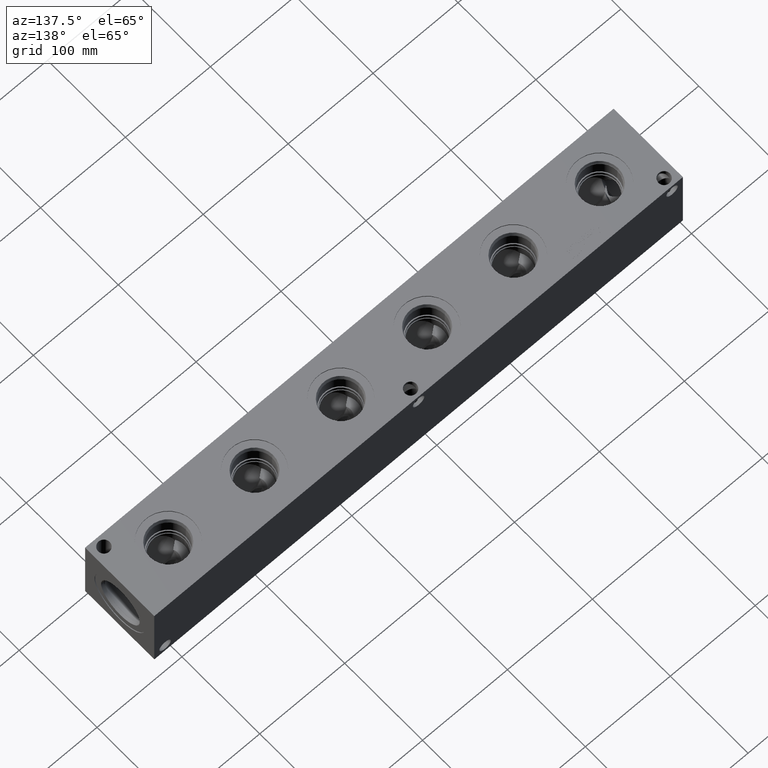
[diagram: clean part render]
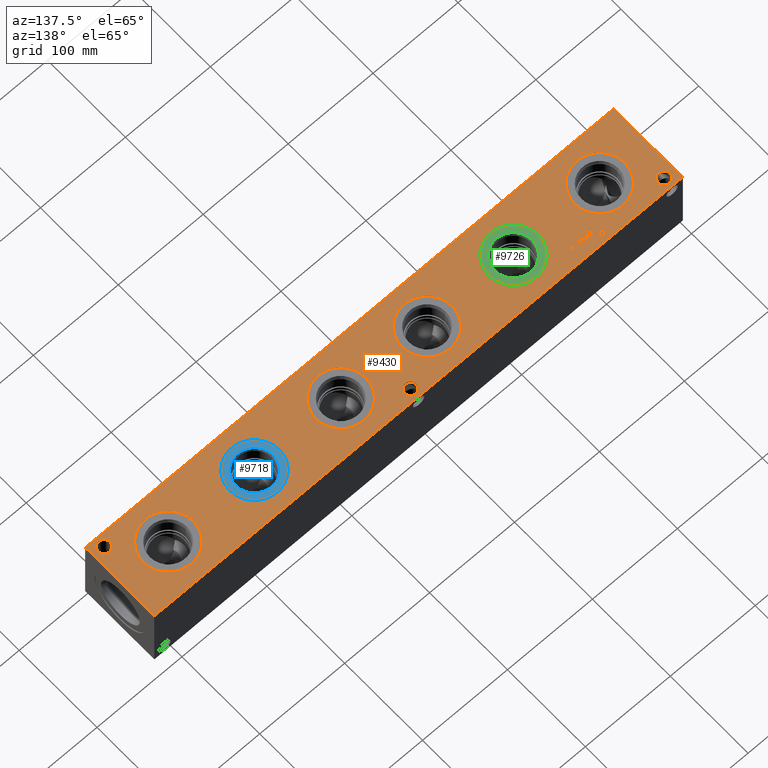
[diagram: same view with three faces highlighted in distinct colors, each labeled with its STEP entity id]
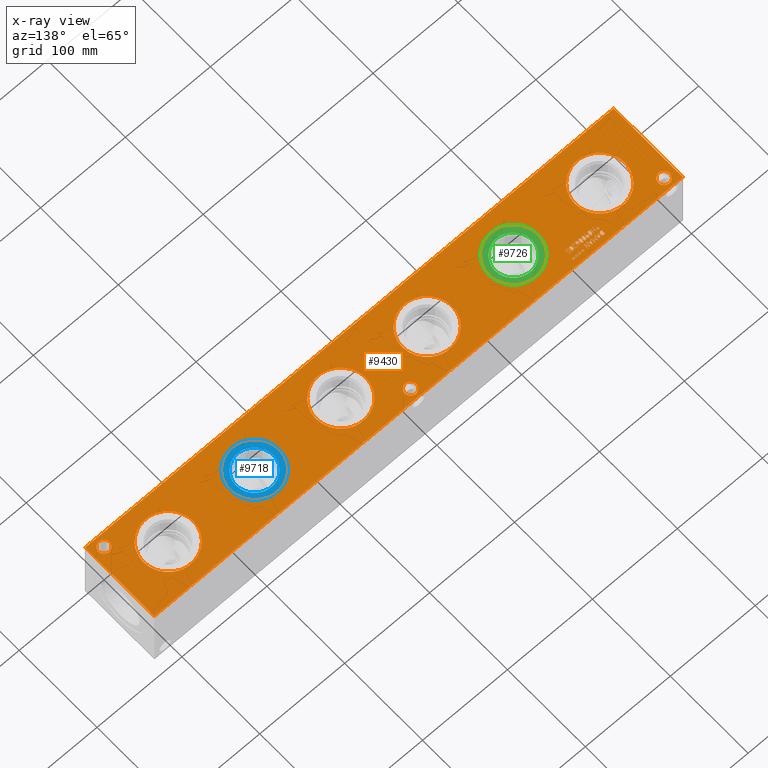
[diagram: x-ray of the same camera — body ghosted, the three highlighted faces saturated]
A machine part, auxiliary view with three faces highlighted in distinct colors.
The next image is the same camera in x-ray (body ghosted, the three faces saturated) — at least one of them is partly hidden behind the body in this view.
Their STEP definitions:

[orange] entity #9430 — the highlighted planar face has unit normal (0, 0, 1).
#243=CIRCLE('',#9847,29.2862);
#244=CIRCLE('',#9848,29.2862);
#245=CIRCLE('',#9849,29.2862);
#246=CIRCLE('',#9850,29.2862);
#247=CIRCLE('',#9851,29.2862);
#248=CIRCLE('',#9852,29.2862);
#249=CIRCLE('',#9853,29.2862);
#250=CIRCLE('',#9854,29.2862);
#251=CIRCLE('',#9855,29.2862);
#252=CIRCLE('',#9856,29.2862);
#253=CIRCLE('',#9857,29.2862);
#254=CIRCLE('',#9858,29.2862);
#255=CIRCLE('',#9859,6.7437);
#256=CIRCLE('',#9860,6.7437);
#257=CIRCLE('',#9861,6.7437);
#258=CIRCLE('',#9862,6.7437);
#259=CIRCLE('',#9863,6.7437);
#260=CIRCLE('',#9864,6.7437);
#524=FACE_BOUND('',#1697,.T.);
#525=FACE_BOUND('',#1698,.T.);
#526=FACE_BOUND('',#1699,.T.);
#527=FACE_BOUND('',#1700,.T.);
#528=FACE_BOUND('',#1701,.T.);
#529=FACE_BOUND('',#1702,.T.);
#530=FACE_BOUND('',#1703,.T.);
#531=FACE_BOUND('',#1704,.T.);
#532=FACE_BOUND('',#1705,.T.);
#533=FACE_BOUND('',#1706,.T.);
#534=FACE_BOUND('',#1707,.T.);
#535=FACE_BOUND('',#1708,.T.);
#536=FACE_BOUND('',#1709,.T.);
#537=FACE_BOUND('',#1710,.T.);
#538=FACE_BOUND('',#1711,.T.);
#539=FACE_BOUND('',#1712,.T.);
#540=FACE_BOUND('',#1713,.T.);
#541=FACE_BOUND('',#1714,.T.);
#542=FACE_BOUND('',#1715,.T.);
#543=FACE_BOUND('',#1716,.T.);
#544=FACE_BOUND('',#1717,.T.);
#545=FACE_BOUND('',#1718,.T.);
#546=FACE_BOUND('',#1719,.T.);
#547=FACE_BOUND('',#1720,.T.);
#548=FACE_BOUND('',#1721,.T.);
#549=FACE_BOUND('',#1722,.T.);
#550=FACE_BOUND('',#1723,.T.);
#551=FACE_BOUND('',#1724,.T.);
#600=B_SPLINE_CURVE_WITH_KNOTS('',2,(#12775,#12776,#12777,#12778),
 .UNSPECIFIED.,.F.,.F.,(3,1,3),(0.,1.,2.),.UNSPECIFIED.);
#602=B_SPLINE_CURVE_WITH_KNOTS('',2,(#12794,#12795,#12796,#12797),
 .UNSPECIFIED.,.F.,.F.,(3,1,3),(0.,1.,2.),.UNSPECIFIED.);
#604=B_SPLINE_CURVE_WITH_KNOTS('',2,(#12813,#12814,#12815,#12816),
 .UNSPECIFIED.,.F.,.F.,(3,1,3),(0.,1.,2.),.UNSPECIFIED.);
#606=B_SPLINE_CURVE_WITH_KNOTS('',2,(#12832,#12833,#12834,#12835),
 .UNSPECIFIED.,.F.,.F.,(3,1,3),(0.,1.,2.),.UNSPECIFIED.);
#608=B_SPLINE_CURVE_WITH_KNOTS('',2,(#12851,#12852,#12853,#12854),
 .UNSPECIFIED.,.F.,.F.,(3,1,3),(0.,1.,2.),.UNSPECIFIED.);
#610=B_SPLINE_CURVE_WITH_KNOTS('',2,(#12882,#12883,#12884,#12885),
 .UNSPECIFIED.,.F.,.F.,(3,1,3),(0.,1.,2.),.UNSPECIFIED.);
#612=B_SPLINE_CURVE_WITH_KNOTS('',2,(#12901,#12902,#12903,#12904),
 .UNSPECIFIED.,.F.,.F.,(3,1,3),(0.,1.,2.),.UNSPECIFIED.);
#614=B_SPLINE_CURVE_WITH_KNOTS('',2,(#12920,#12921,#12922,#12923),
 .UNSPECIFIED.,.F.,.F.,(3,1,3),(0.,1.,2.),.UNSPECIFIED.);
#616=B_SPLINE_CURVE_WITH_KNOTS('',2,(#12939,#12940,#12941,#12942),
 .UNSPECIFIED.,.F.,.F.,(3,1,3),(0.,1.,2.),.UNSPECIFIED.);
#618=B_SPLINE_CURVE_WITH_KNOTS('',2,(#12958,#12959,#12960,#12961),
 .UNSPECIFIED.,.F.,.F.,(3,1,3),(0.,1.,2.),.UNSPECIFIED.);
#620=B_SPLINE_CURVE_WITH_KNOTS('',2,(#12977,#12978,#12979,#12980),
 .UNSPECIFIED.,.F.,.F.,(3,1,3),(0.,1.,2.),.UNSPECIFIED.);
#636=B_SPLINE_CURVE_WITH_KNOTS('',2,(#13140,#13141,#13142,#13143),
 .UNSPECIFIED.,.F.,.F.,(3,1,3),(0.,1.,2.),.UNSPECIFIED.);
#638=B_SPLINE_CURVE_WITH_KNOTS('',2,(#13161,#13162,#13163,#13164),
 .UNSPECIFIED.,.F.,.F.,(3,1,3),(0.,1.,2.),.UNSPECIFIED.);
#640=B_SPLINE_CURVE_WITH_KNOTS('',2,(#13180,#13181,#13182,#13183),
 .UNSPECIFIED.,.F.,.F.,(3,1,3),(0.,1.,2.),.UNSPECIFIED.);
#642=B_SPLINE_CURVE_WITH_KNOTS('',2,(#13199,#13200,#13201,#13202),
 .UNSPECIFIED.,.F.,.F.,(3,1,3),(0.,1.,2.),.UNSPECIFIED.);
#644=B_SPLINE_CURVE_WITH_KNOTS('',2,(#13218,#13219,#13220,#13221),
 .UNSPECIFIED.,.F.,.F.,(3,1,3),(0.,1.,2.),.UNSPECIFIED.);
#646=B_SPLINE_CURVE_WITH_KNOTS('',2,(#13249,#13250,#13251,#13252),
 .UNSPECIFIED.,.F.,.F.,(3,1,3),(0.,1.,2.),.UNSPECIFIED.);
#648=B_SPLINE_CURVE_WITH_KNOTS('',2,(#13268,#13269,#13270,#13271),
 .UNSPECIFIED.,.F.,.F.,(3,1,3),(0.,1.,2.),.UNSPECIFIED.);
#650=B_SPLINE_CURVE_WITH_KNOTS('',2,(#13287,#13288,#13289,#13290),
 .UNSPECIFIED.,.F.,.F.,(3,1,3),(0.,1.,2.),.UNSPECIFIED.);
#652=B_SPLINE_CURVE_WITH_KNOTS('',2,(#13306,#13307,#13308,#13309),
 .UNSPECIFIED.,.F.,.F.,(3,1,3),(0.,1.,2.),.UNSPECIFIED.);
#654=B_SPLINE_CURVE_WITH_KNOTS('',2,(#13325,#13326,#13327,#13328),
 .UNSPECIFIED.,.F.,.F.,(3,1,3),(0.,1.,2.),.UNSPECIFIED.);
#656=B_SPLINE_CURVE_WITH_KNOTS('',2,(#13344,#13345,#13346,#13347),
 .UNSPECIFIED.,.F.,.F.,(3,1,3),(0.,1.,2.),.UNSPECIFIED.);
#658=B_SPLINE_CURVE_WITH_KNOTS('',2,(#13362,#13363,#13364,#13365),
 .UNSPECIFIED.,.F.,.F.,(3,1,3),(0.,1.,2.),.UNSPECIFIED.);
#676=B_SPLINE_CURVE_WITH_KNOTS('',2,(#13533,#13534,#13535,#13536),
 .UNSPECIFIED.,.F.,.F.,(3,1,3),(0.,1.,2.),.UNSPECIFIED.);
#678=B_SPLINE_CURVE_WITH_KNOTS('',2,(#13554,#13555,#13556,#13557),
 .UNSPECIFIED.,.F.,.F.,(3,1,3),(0.,1.,2.),.UNSPECIFIED.);
#680=B_SPLINE_CURVE_WITH_KNOTS('',2,(#13573,#13574,#13575,#13576),
 .UNSPECIFIED.,.F.,.F.,(3,1,3),(0.,1.,2.),.UNSPECIFIED.);
#682=B_SPLINE_CURVE_WITH_KNOTS('',2,(#13591,#13592,#13593,#13594),
 .UNSPECIFIED.,.F.,.F.,(3,1,3),(0.,1.,2.),.UNSPECIFIED.);
#700=B_SPLINE_CURVE_WITH_KNOTS('',2,(#13762,#13763,#13764,#13765),
 .UNSPECIFIED.,.F.,.F.,(3,1,3),(0.,1.,2.),.UNSPECIFIED.);
#702=B_SPLINE_CURVE_WITH_KNOTS('',2,(#13783,#13784,#13785,#13786),
 .UNSPECIFIED.,.F.,.F.,(3,1,3),(0.,1.,2.),.UNSPECIFIED.);
#704=B_SPLINE_CURVE_WITH_KNOTS('',2,(#13802,#13803,#13804,#13805),
 .UNSPECIFIED.,.F.,.F.,(3,1,3),(0.,1.,2.),.UNSPECIFIED.);
#706=B_SPLINE_CURVE_WITH_KNOTS('',2,(#13820,#13821,#13822,#13823),
 .UNSPECIFIED.,.F.,.F.,(3,1,3),(0.,1.,2.),.UNSPECIFIED.);
#722=B_SPLINE_CURVE_WITH_KNOTS('',2,(#13972,#13973,#13974,#13975),
 .UNSPECIFIED.,.F.,.F.,(3,1,3),(0.,1.,2.),.UNSPECIFIED.);
#724=B_SPLINE_CURVE_WITH_KNOTS('',2,(#13993,#13994,#13995,#13996),
 .UNSPECIFIED.,.F.,.F.,(3,1,3),(0.,1.,2.),.UNSPECIFIED.);
#726=B_SPLINE_CURVE_WITH_KNOTS('',2,(#14012,#14013,#14014,#14015),
 .UNSPECIFIED.,.F.,.F.,(3,1,3),(0.,1.,2.),.UNSPECIFIED.);
#728=B_SPLINE_CURVE_WITH_KNOTS('',2,(#14031,#14032,#14033,#14034),
 .UNSPECIFIED.,.F.,.F.,(3,1,3),(0.,1.,2.),.UNSPECIFIED.);
#730=B_SPLINE_CURVE_WITH_KNOTS('',2,(#14050,#14051,#14052,#14053),
 .UNSPECIFIED.,.F.,.F.,(3,1,3),(0.,1.,2.),.UNSPECIFIED.);
#732=B_SPLINE_CURVE_WITH_KNOTS('',2,(#14081,#14082,#14083,#14084),
 .UNSPECIFIED.,.F.,.F.,(3,1,3),(0.,1.,2.),.UNSPECIFIED.);
#734=B_SPLINE_CURVE_WITH_KNOTS('',2,(#14100,#14101,#14102,#14103),
 .UNSPECIFIED.,.F.,.F.,(3,1,3),(0.,1.,2.),.UNSPECIFIED.);
#736=B_SPLINE_CURVE_WITH_KNOTS('',2,(#14119,#14120,#14121,#14122),
 .UNSPECIFIED.,.F.,.F.,(3,1,3),(0.,1.,2.),.UNSPECIFIED.);
#738=B_SPLINE_CURVE_WITH_KNOTS('',2,(#14138,#14139,#14140,#14141),
 .UNSPECIFIED.,.F.,.F.,(3,1,3),(0.,1.,2.),.UNSPECIFIED.);
#740=B_SPLINE_CURVE_WITH_KNOTS('',2,(#14157,#14158,#14159,#14160),
 .UNSPECIFIED.,.F.,.F.,(3,1,3),(0.,1.,2.),.UNSPECIFIED.);
#742=B_SPLINE_CURVE_WITH_KNOTS('',2,(#14176,#14177,#14178,#14179),
 .UNSPECIFIED.,.F.,.F.,(3,1,3),(0.,1.,2.),.UNSPECIFIED.);
#744=B_SPLINE_CURVE_WITH_KNOTS('',2,(#14194,#14195,#14196,#14197),
 .UNSPECIFIED.,.F.,.F.,(3,1,3),(0.,1.,2.),.UNSPECIFIED.);
#762=B_SPLINE_CURVE_WITH_KNOTS('',2,(#14365,#14366,#14367,#14368),
 .UNSPECIFIED.,.F.,.F.,(3,1,3),(0.,1.,2.),.UNSPECIFIED.);
#764=B_SPLINE_CURVE_WITH_KNOTS('',2,(#14386,#14387,#14388,#14389),
 .UNSPECIFIED.,.F.,.F.,(3,1,3),(0.,1.,2.),.UNSPECIFIED.);
#766=B_SPLINE_CURVE_WITH_KNOTS('',2,(#14405,#14406,#14407,#14408),
 .UNSPECIFIED.,.F.,.F.,(3,1,3),(0.,1.,2.),.UNSPECIFIED.);
#768=B_SPLINE_CURVE_WITH_KNOTS('',2,(#14423,#14424,#14425,#14426),
 .UNSPECIFIED.,.F.,.F.,(3,1,3),(0.,1.,2.),.UNSPECIFIED.);
#786=B_SPLINE_CURVE_WITH_KNOTS('',2,(#14776,#14777,#14778,#14779),
 .UNSPECIFIED.,.F.,.F.,(3,1,3),(0.,1.,2.),.UNSPECIFIED.);
#788=B_SPLINE_CURVE_WITH_KNOTS('',2,(#14797,#14798,#14799,#14800),
 .UNSPECIFIED.,.F.,.F.,(3,1,3),(0.,1.,2.),.UNSPECIFIED.);
#790=B_SPLINE_CURVE_WITH_KNOTS('',2,(#14816,#14817,#14818,#14819),
 .UNSPECIFIED.,.F.,.F.,(3,1,3),(0.,1.,2.),.UNSPECIFIED.);
#792=B_SPLINE_CURVE_WITH_KNOTS('',2,(#14834,#14835,#14836,#14837),
 .UNSPECIFIED.,.F.,.F.,(3,1,3),(0.,1.,2.),.UNSPECIFIED.);
#794=B_SPLINE_CURVE_WITH_KNOTS('',2,(#14853,#14854,#14855,#14856),
 .UNSPECIFIED.,.F.,.F.,(3,1,3),(0.,1.,2.),.UNSPECIFIED.);
#796=B_SPLINE_CURVE_WITH_KNOTS('',2,(#14874,#14875,#14876,#14877),
 .UNSPECIFIED.,.F.,.F.,(3,1,3),(0.,1.,2.),.UNSPECIFIED.);
#798=B_SPLINE_CURVE_WITH_KNOTS('',2,(#14893,#14894,#14895,#14896),
 .UNSPECIFIED.,.F.,.F.,(3,1,3),(0.,1.,2.),.UNSPECIFIED.);
#800=B_SPLINE_CURVE_WITH_KNOTS('',2,(#14912,#14913,#14914,#14915),
 .UNSPECIFIED.,.F.,.F.,(3,1,3),(0.,1.,2.),.UNSPECIFIED.);
#802=B_SPLINE_CURVE_WITH_KNOTS('',2,(#14931,#14932,#14933,#14934),
 .UNSPECIFIED.,.F.,.F.,(3,1,3),(0.,1.,2.),.UNSPECIFIED.);
#804=B_SPLINE_CURVE_WITH_KNOTS('',2,(#14950,#14951,#14952,#14953),
 .UNSPECIFIED.,.F.,.F.,(3,1,3),(0.,1.,2.),.UNSPECIFIED.);
#806=B_SPLINE_CURVE_WITH_KNOTS('',2,(#14969,#14970,#14971,#14972),
 .UNSPECIFIED.,.F.,.F.,(3,1,3),(0.,1.,2.),.UNSPECIFIED.);
#808=B_SPLINE_CURVE_WITH_KNOTS('',2,(#15000,#15001,#15002,#15003),
 .UNSPECIFIED.,.F.,.F.,(3,1,3),(0.,1.,2.),.UNSPECIFIED.);
#810=B_SPLINE_CURVE_WITH_KNOTS('',2,(#15019,#15020,#15021,#15022),
 .UNSPECIFIED.,.F.,.F.,(3,1,3),(0.,1.,2.),.UNSPECIFIED.);
#812=B_SPLINE_CURVE_WITH_KNOTS('',2,(#15038,#15039,#15040,#15041),
 .UNSPECIFIED.,.F.,.F.,(3,1,3),(0.,1.,2.),.UNSPECIFIED.);
#814=B_SPLINE_CURVE_WITH_KNOTS('',2,(#15057,#15058,#15059,#15060),
 .UNSPECIFIED.,.F.,.F.,(3,1,3),(0.,1.,2.),.UNSPECIFIED.);
#816=B_SPLINE_CURVE_WITH_KNOTS('',2,(#15076,#15077,#15078,#15079),
 .UNSPECIFIED.,.F.,.F.,(3,1,3),(0.,1.,2.),.UNSPECIFIED.);
#818=B_SPLINE_CURVE_WITH_KNOTS('',2,(#15095,#15096,#15097,#15098),
 .UNSPECIFIED.,.F.,.F.,(3,1,3),(0.,1.,2.),.UNSPECIFIED.);
#820=B_SPLINE_CURVE_WITH_KNOTS('',2,(#15114,#15115,#15116,#15117),
 .UNSPECIFIED.,.F.,.F.,(3,1,3),(0.,1.,2.),.UNSPECIFIED.);
#822=B_SPLINE_CURVE_WITH_KNOTS('',2,(#15133,#15134,#15135,#15136),
 .UNSPECIFIED.,.F.,.F.,(3,1,3),(0.,1.,2.),.UNSPECIFIED.);
#824=B_SPLINE_CURVE_WITH_KNOTS('',2,(#15163,#15164,#15165,#15166),
 .UNSPECIFIED.,.F.,.F.,(3,1,3),(0.,1.,2.),.UNSPECIFIED.);
#826=B_SPLINE_CURVE_WITH_KNOTS('',2,(#15327,#15328,#15329,#15330),
 .UNSPECIFIED.,.F.,.F.,(3,1,3),(0.,1.,2.),.UNSPECIFIED.);
#827=B_SPLINE_CURVE_WITH_KNOTS('',2,(#15332,#15333,#15334,#15335),
 .UNSPECIFIED.,.F.,.F.,(3,1,3),(0.,1.,2.),.UNSPECIFIED.);
#828=B_SPLINE_CURVE_WITH_KNOTS('',2,(#15337,#15338,#15339,#15340),
 .UNSPECIFIED.,.F.,.F.,(3,1,3),(0.,1.,2.),.UNSPECIFIED.);
#829=B_SPLINE_CURVE_WITH_KNOTS('',2,(#15347,#15348,#15349,#15350),
 .UNSPECIFIED.,.F.,.F.,(3,1,3),(0.,1.,2.),.UNSPECIFIED.);
#1176=FACE_OUTER_BOUND('',#1696,.T.);
#1696=EDGE_LOOP('',(#6736,#6737,#6738,#6739));
#1697=EDGE_LOOP('',(#6740,#6741,#6742,#6743,#6744,#6745,#6746,#6747,#6748,
#6749,#6750,#6751,#6752,#6753,#6754,#6755,#6756));
#1698=EDGE_LOOP('',(#6757,#6758,#6759,#6760,#6761,#6762,#6763,#6764,#6765,
#6766,#6767,#6768,#6769,#6770));
#1699=EDGE_LOOP('',(#6771,#6772,#6773,#6774));
#1700=EDGE_LOOP('',(#6775,#6776,#6777,#6778));
#1701=EDGE_LOOP('',(#6779,#6780,#6781,#6782,#6783,#6784,#6785,#6786,#6787,
#6788,#6789,#6790,#6791,#6792));
#1702=EDGE_LOOP('',(#6793,#6794,#6795,#6796));
#1703=EDGE_LOOP('',(#6797,#6798,#6799,#6800,#6801,#6802,#6803,#6804,#6805,
#6806,#6807,#6808,#6809,#6810,#6811,#6812,#6813,#6814));
#1704=EDGE_LOOP('',(#6815,#6816,#6817,#6818,#6819,#6820,#6821,#6822,#6823,
#6824,#6825,#6826));
#1705=EDGE_LOOP('',(#6827,#6828,#6829,#6830));
#1706=EDGE_LOOP('',(#6831,#6832,#6833,#6834,#6835,#6836,#6837,#6838,#6839,
#6840,#6841,#6842,#6843,#6844,#6845,#6846,#6847,#6848,#6849,#6850));
#1707=EDGE_LOOP('',(#6851,#6852));
#1708=EDGE_LOOP('',(#6853,#6854));
#1709=EDGE_LOOP('',(#6855,#6856));
#1710=EDGE_LOOP('',(#6857,#6858));
#1711=EDGE_LOOP('',(#6859,#6860));
#1712=EDGE_LOOP('',(#6861,#6862));
#1713=EDGE_LOOP('',(#6863,#6864));
#1714=EDGE_LOOP('',(#6865,#6866));
#1715=EDGE_LOOP('',(#6867,#6868));
#1716=EDGE_LOOP('',(#6869,#6870,#6871,#6872,#6873,#6874,#6875,#6876,#6877,
#6878,#6879,#6880,#6881,#6882,#6883,#6884,#6885,#6886));
#1717=EDGE_LOOP('',(#6887,#6888,#6889,#6890,#6891,#6892,#6893,#6894,#6895,
#6896,#6897,#6898,#6899,#6900,#6901,#6902,#6903,#6904));
#1718=EDGE_LOOP('',(#6905,#6906,#6907,#6908,#6909,#6910,#6911,#6912,#6913,
#6914));
#1719=EDGE_LOOP('',(#6915,#6916,#6917,#6918,#6919,#6920,#6921,#6922));
#1720=EDGE_LOOP('',(#6923,#6924,#6925,#6926,#6927,#6928,#6929));
#1721=EDGE_LOOP('',(#6930,#6931,#6932,#6933,#6934,#6935,#6936,#6937));
#1722=EDGE_LOOP('',(#6938,#6939,#6940,#6941,#6942,#6943,#6944,#6945,#6946,
#6947,#6948,#6949,#6950));
#1723=EDGE_LOOP('',(#6951,#6952,#6953,#6954,#6955,#6956,#6957,#6958,#6959,
#6960,#6961,#6962,#6963,#6964,#6965,#6966,#6967,#6968));
#1724=EDGE_LOOP('',(#6969,#6970,#6971,#6972,#6973,#6974,#6975,#6976,#6977,
#6978,#6979,#6980,#6981,#6982,#6983,#6984,#6985,#6986));
#2119=LINE('',#12754,#2879);
#2123=LINE('',#12762,#2883);
#2131=LINE('',#12863,#2891);
#2134=LINE('',#12869,#2894);
#2143=LINE('',#12989,#2903);
#2146=LINE('',#12994,#2906);
#2161=LINE('',#13230,#2921);
#2164=LINE('',#13236,#2924);
#2210=LINE('',#14062,#2970);
#2213=LINE('',#14068,#2973);
#2234=LINE('',#14435,#2994);
#2238=LINE('',#14443,#2998);
#2241=LINE('',#14449,#3001);
#2244=LINE('',#14455,#3004);
#2247=LINE('',#14461,#3007);
#2250=LINE('',#14467,#3010);
#2253=LINE('',#14473,#3013);
#2256=LINE('',#14479,#3016);
#2259=LINE('',#14485,#3019);
#2262=LINE('',#14491,#3022);
#2265=LINE('',#14497,#3025);
#2268=LINE('',#14503,#3028);
#2271=LINE('',#14509,#3031);
#2274=LINE('',#14515,#3034);
#2277=LINE('',#14521,#3037);
#2280=LINE('',#14527,#3040);
#2283=LINE('',#14533,#3043);
#2286=LINE('',#14538,#3046);
#2288=LINE('',#14544,#3048);
#2292=LINE('',#14552,#3052);
#2295=LINE('',#14558,#3055);
#2298=LINE('',#14564,#3058);
#2301=LINE('',#14570,#3061);
#2304=LINE('',#14576,#3064);
#2307=LINE('',#14582,#3067);
#2310=LINE('',#14588,#3070);
#2313=LINE('',#14594,#3073);
#2316=LINE('',#14600,#3076);
#2319=LINE('',#14606,#3079);
#2322=LINE('',#14611,#3082);
#2344=LINE('',#14981,#3104);
#2347=LINE('',#14987,#3107);
#2358=LINE('',#15145,#3118);
#2361=LINE('',#15151,#3121);
#2364=LINE('',#15175,#3124);
#2365=LINE('',#15177,#3125);
#2366=LINE('',#15179,#3126);
#2367=LINE('',#15180,#3127);
#2368=LINE('',#15219,#3128);
#2369=LINE('',#15221,#3129);
#2370=LINE('',#15223,#3130);
#2371=LINE('',#15225,#3131);
#2372=LINE('',#15227,#3132);
#2373=LINE('',#15229,#3133);
#2374=LINE('',#15231,#3134);
#2375=LINE('',#15233,#3135);
#2376=LINE('',#15235,#3136);
#2377=LINE('',#15237,#3137);
#2378=LINE('',#15239,#3138);
#2379=LINE('',#15241,#3139);
#2380=LINE('',#15243,#3140);
#2381=LINE('',#15245,#3141);
#2382=LINE('',#15247,#3142);
#2383=LINE('',#15249,#3143);
#2384=LINE('',#15251,#3144);
#2385=LINE('',#15252,#3145);
#2386=LINE('',#15255,#3146);
#2387=LINE('',#15257,#3147);
#2388=LINE('',#15259,#3148);
#2389=LINE('',#15261,#3149);
#2390=LINE('',#15263,#3150);
#2391=LINE('',#15265,#3151);
#2392=LINE('',#15267,#3152);
#2393=LINE('',#15269,#3153);
#2394=LINE('',#15271,#3154);
#2395=LINE('',#15273,#3155);
#2396=LINE('',#15275,#3156);
#2397=LINE('',#15277,#3157);
#2398=LINE('',#15279,#3158);
#2399=LINE('',#15281,#3159);
#2400=LINE('',#15283,#3160);
#2401=LINE('',#15285,#3161);
#2402=LINE('',#15287,#3162);
#2403=LINE('',#15288,#3163);
#2404=LINE('',#15291,#3164);
#2405=LINE('',#15293,#3165);
#2406=LINE('',#15295,#3166);
#2407=LINE('',#15297,#3167);
#2408=LINE('',#15299,#3168);
#2409=LINE('',#15301,#3169);
#2410=LINE('',#15303,#3170);
#2411=LINE('',#15305,#3171);
#2412=LINE('',#15307,#3172);
#2413=LINE('',#15308,#3173);
#2414=LINE('',#15311,#3174);
#2415=LINE('',#15313,#3175);
#2416=LINE('',#15315,#3176);
#2417=LINE('',#15317,#3177);
#2418=LINE('',#15319,#3178);
#2419=LINE('',#15321,#3179);
#2420=LINE('',#15323,#3180);
#2421=LINE('',#15324,#3181);
#2422=LINE('',#15342,#3182);
#2423=LINE('',#15344,#3183);
#2424=LINE('',#15346,#3184);
#2425=LINE('',#15353,#3185);
#2426=LINE('',#15355,#3186);
#2427=LINE('',#15357,#3187);
#2428=LINE('',#15359,#3188);
#2429=LINE('',#15361,#3189);
#2430=LINE('',#15363,#3190);
#2431=LINE('',#15365,#3191);
#2432=LINE('',#15366,#3192);
#2433=LINE('',#15369,#3193);
#2434=LINE('',#15371,#3194);
#2435=LINE('',#15373,#3195);
#2436=LINE('',#15375,#3196);
#2437=LINE('',#15377,#3197);
#2438=LINE('',#15379,#3198);
#2439=LINE('',#15381,#3199);
#2440=LINE('',#15383,#3200);
#2441=LINE('',#15385,#3201);
#2442=LINE('',#15387,#3202);
#2443=LINE('',#15389,#3203);
#2444=LINE('',#15391,#3204);
#2445=LINE('',#15392,#3205);
#2446=LINE('',#15395,#3206);
#2447=LINE('',#15397,#3207);
#2448=LINE('',#15399,#3208);
#2449=LINE('',#15401,#3209);
#2450=LINE('',#15403,#3210);
#2451=LINE('',#15405,#3211);
#2452=LINE('',#15407,#3212);
#2453=LINE('',#15409,#3213);
#2454=LINE('',#15411,#3214);
#2455=LINE('',#15413,#3215);
#2456=LINE('',#15415,#3216);
#2457=LINE('',#15417,#3217);
#2458=LINE('',#15419,#3218);
#2459=LINE('',#15421,#3219);
#2460=LINE('',#15423,#3220);
#2461=LINE('',#15425,#3221);
#2462=LINE('',#15427,#3222);
#2463=LINE('',#15428,#3223);
#2464=LINE('',#15431,#3224);
#2465=LINE('',#15433,#3225);
#2466=LINE('',#15435,#3226);
#2467=LINE('',#15437,#3227);
#2468=LINE('',#15439,#3228);
#2469=LINE('',#15441,#3229);
#2470=LINE('',#15443,#3230);
#2471=LINE('',#15445,#3231);
#2472=LINE('',#15447,#3232);
#2473=LINE('',#15449,#3233);
#2474=LINE('',#15451,#3234);
#2475=LINE('',#15453,#3235);
#2476=LINE('',#15455,#3236);
#2477=LINE('',#15457,#3237);
#2478=LINE('',#15459,#3238);
#2479=LINE('',#15461,#3239);
#2480=LINE('',#15463,#3240);
#2481=LINE('',#15464,#3241);
#2879=VECTOR('',#10528,10.);
#2883=VECTOR('',#10534,10.);
#2891=VECTOR('',#10544,10.);
#2894=VECTOR('',#10549,10.);
#2903=VECTOR('',#10560,10.);
#2906=VECTOR('',#10565,10.);
#2921=VECTOR('',#10584,10.);
#2924=VECTOR('',#10589,10.);
#2970=VECTOR('',#10643,10.);
#2973=VECTOR('',#10648,10.);
#2994=VECTOR('',#10675,10.);
#2998=VECTOR('',#10681,10.);
#3001=VECTOR('',#10686,10.);
#3004=VECTOR('',#10691,10.);
#3007=VECTOR('',#10696,10.);
#3010=VECTOR('',#10701,10.);
#3013=VECTOR('',#10706,10.);
#3016=VECTOR('',#10711,10.);
#3019=VECTOR('',#10716,10.);
#3022=VECTOR('',#10721,10.);
#3025=VECTOR('',#10726,10.);
#3028=VECTOR('',#10731,10.);
#3031=VECTOR('',#10736,10.);
#3034=VECTOR('',#10741,10.);
#3037=VECTOR('',#10746,10.);
#3040=VECTOR('',#10751,10.);
#3043=VECTOR('',#10756,10.);
#3046=VECTOR('',#10761,10.);
#3048=VECTOR('',#10767,10.);
#3052=VECTOR('',#10773,10.);
#3055=VECTOR('',#10778,10.);
#3058=VECTOR('',#10783,10.);
#3061=VECTOR('',#10788,10.);
#3064=VECTOR('',#10793,10.);
#3067=VECTOR('',#10798,10.);
#3070=VECTOR('',#10803,10.);
#3073=VECTOR('',#10808,10.);
#3076=VECTOR('',#10813,10.);
#3079=VECTOR('',#10818,10.);
#3082=VECTOR('',#10823,10.);
#3104=VECTOR('',#10851,10.);
#3107=VECTOR('',#10856,10.);
#3118=VECTOR('',#10869,10.);
#3121=VECTOR('',#10874,10.);
#3124=VECTOR('',#10881,10.);
#3125=VECTOR('',#10882,10.);
#3126=VECTOR('',#10883,10.);
#3127=VECTOR('',#10884,10.);
#3128=VECTOR('',#10921,10.);
#3129=VECTOR('',#10922,10.);
#3130=VECTOR('',#10923,10.);
#3131=VECTOR('',#10924,10.);
#3132=VECTOR('',#10925,10.);
#3133=VECTOR('',#10926,10.);
#3134=VECTOR('',#10927,10.);
#3135=VECTOR('',#10928,10.);
#3136=VECTOR('',#10929,10.);
#3137=VECTOR('',#10930,10.);
#3138=VECTOR('',#10931,10.);
#3139=VECTOR('',#10932,10.);
#3140=VECTOR('',#10933,10.);
#3141=VECTOR('',#10934,10.);
#3142=VECTOR('',#10935,10.);
#3143=VECTOR('',#10936,10.);
#3144=VECTOR('',#10937,10.);
#3145=VECTOR('',#10938,10.);
#3146=VECTOR('',#10939,10.);
#3147=VECTOR('',#10940,10.);
#3148=VECTOR('',#10941,10.);
#3149=VECTOR('',#10942,10.);
#3150=VECTOR('',#10943,10.);
#3151=VECTOR('',#10944,10.);
#3152=VECTOR('',#10945,10.);
#3153=VECTOR('',#10946,10.);
#3154=VECTOR('',#10947,10.);
#3155=VECTOR('',#10948,10.);
#3156=VECTOR('',#10949,10.);
#3157=VECTOR('',#10950,10.);
#3158=VECTOR('',#10951,10.);
#3159=VECTOR('',#10952,10.);
#3160=VECTOR('',#10953,10.);
#3161=VECTOR('',#10954,10.);
#3162=VECTOR('',#10955,10.);
#3163=VECTOR('',#10956,10.);
#3164=VECTOR('',#10957,10.);
#3165=VECTOR('',#10958,10.);
#3166=VECTOR('',#10959,10.);
#3167=VECTOR('',#10960,10.);
#3168=VECTOR('',#10961,10.);
#3169=VECTOR('',#10962,10.);
#3170=VECTOR('',#10963,10.);
#3171=VECTOR('',#10964,10.);
#3172=VECTOR('',#10965,10.);
#3173=VECTOR('',#10966,10.);
#3174=VECTOR('',#10967,10.);
#3175=VECTOR('',#10968,10.);
#3176=VECTOR('',#10969,10.);
#3177=VECTOR('',#10970,10.);
#3178=VECTOR('',#10971,10.);
#3179=VECTOR('',#10972,10.);
#3180=VECTOR('',#10973,10.);
#3181=VECTOR('',#10974,10.);
#3182=VECTOR('',#10975,10.);
#3183=VECTOR('',#10976,10.);
#3184=VECTOR('',#10977,10.);
#3185=VECTOR('',#10978,10.);
#3186=VECTOR('',#10979,10.);
#3187=VECTOR('',#10980,10.);
#3188=VECTOR('',#10981,10.);
#3189=VECTOR('',#10982,10.);
#3190=VECTOR('',#10983,10.);
#3191=VECTOR('',#10984,10.);
#3192=VECTOR('',#10985,10.);
#3193=VECTOR('',#10986,10.);
#3194=VECTOR('',#10987,10.);
#3195=VECTOR('',#10988,10.);
#3196=VECTOR('',#10989,10.);
#3197=VECTOR('',#10990,10.);
#3198=VECTOR('',#10991,10.);
#3199=VECTOR('',#10992,10.);
#3200=VECTOR('',#10993,10.);
#3201=VECTOR('',#10994,10.);
#3202=VECTOR('',#10995,10.);
#3203=VECTOR('',#10996,10.);
#3204=VECTOR('',#10997,10.);
#3205=VECTOR('',#10998,10.);
#3206=VECTOR('',#10999,10.);
#3207=VECTOR('',#11000,10.);
#3208=VECTOR('',#11001,10.);
#3209=VECTOR('',#11002,10.);
#3210=VECTOR('',#11003,10.);
#3211=VECTOR('',#11004,10.);
#3212=VECTOR('',#11005,10.);
#3213=VECTOR('',#11006,10.);
#3214=VECTOR('',#11007,10.);
#3215=VECTOR('',#11008,10.);
#3216=VECTOR('',#11009,10.);
#3217=VECTOR('',#11010,10.);
#3218=VECTOR('',#11011,10.);
#3219=VECTOR('',#11012,10.);
#3220=VECTOR('',#11013,10.);
#3221=VECTOR('',#11014,10.);
#3222=VECTOR('',#11015,10.);
#3223=VECTOR('',#11016,10.);
#3224=VECTOR('',#11017,10.);
#3225=VECTOR('',#11018,10.);
#3226=VECTOR('',#11019,10.);
#3227=VECTOR('',#11020,10.);
#3228=VECTOR('',#11021,10.);
#3229=VECTOR('',#11022,10.);
#3230=VECTOR('',#11023,10.);
#3231=VECTOR('',#11024,10.);
#3232=VECTOR('',#11025,10.);
#3233=VECTOR('',#11026,10.);
#3234=VECTOR('',#11027,10.);
#3235=VECTOR('',#11028,10.);
#3236=VECTOR('',#11029,10.);
#3237=VECTOR('',#11030,10.);
#3238=VECTOR('',#11031,10.);
#3239=VECTOR('',#11032,10.);
#3240=VECTOR('',#11033,10.);
#3241=VECTOR('',#11034,10.);
#3639=VERTEX_POINT('',#12752);
#3640=VERTEX_POINT('',#12753);
#3643=VERTEX_POINT('',#12761);
#3645=VERTEX_POINT('',#12774);
#3647=VERTEX_POINT('',#12793);
#3649=VERTEX_POINT('',#12812);
#3651=VERTEX_POINT('',#12831);
#3653=VERTEX_POINT('',#12850);
#3655=VERTEX_POINT('',#12862);
#3657=VERTEX_POINT('',#12868);
#3659=VERTEX_POINT('',#12881);
#3661=VERTEX_POINT('',#12900);
#3663=VERTEX_POINT('',#12919);
#3665=VERTEX_POINT('',#12938);
#3667=VERTEX_POINT('',#12957);
#3669=VERTEX_POINT('',#12976);
#3671=VERTEX_POINT('',#12988);
#3687=VERTEX_POINT('',#13138);
#3688=VERTEX_POINT('',#13139);
#3691=VERTEX_POINT('',#13160);
#3693=VERTEX_POINT('',#13179);
#3695=VERTEX_POINT('',#13198);
#3697=VERTEX_POINT('',#13217);
#3699=VERTEX_POINT('',#13229);
#3701=VERTEX_POINT('',#13235);
#3703=VERTEX_POINT('',#13248);
#3705=VERTEX_POINT('',#13267);
#3707=VERTEX_POINT('',#13286);
#3709=VERTEX_POINT('',#13305);
#3711=VERTEX_POINT('',#13324);
#3713=VERTEX_POINT('',#13343);
#3731=VERTEX_POINT('',#13531);
#3732=VERTEX_POINT('',#13532);
#3735=VERTEX_POINT('',#13553);
#3737=VERTEX_POINT('',#13572);
#3755=VERTEX_POINT('',#13760);
#3756=VERTEX_POINT('',#13761);
#3759=VERTEX_POINT('',#13782);
#3761=VERTEX_POINT('',#13801);
#3777=VERTEX_POINT('',#13970);
#3778=VERTEX_POINT('',#13971);
#3781=VERTEX_POINT('',#13992);
#3783=VERTEX_POINT('',#14011);
#3785=VERTEX_POINT('',#14030);
#3787=VERTEX_POINT('',#14049);
#3789=VERTEX_POINT('',#14061);
#3791=VERTEX_POINT('',#14067);
#3793=VERTEX_POINT('',#14080);
#3795=VERTEX_POINT('',#14099);
#3797=VERTEX_POINT('',#14118);
#3799=VERTEX_POINT('',#14137);
#3801=VERTEX_POINT('',#14156);
#3803=VERTEX_POINT('',#14175);
#3821=VERTEX_POINT('',#14363);
#3822=VERTEX_POINT('',#14364);
#3825=VERTEX_POINT('',#14385);
#3827=VERTEX_POINT('',#14404);
#3829=VERTEX_POINT('',#14433);
#3830=VERTEX_POINT('',#14434);
#3833=VERTEX_POINT('',#14442);
#3835=VERTEX_POINT('',#14448);
#3837=VERTEX_POINT('',#14454);
#3839=VERTEX_POINT('',#14460);
#3841=VERTEX_POINT('',#14466);
#3843=VERTEX_POINT('',#14472);
#3845=VERTEX_POINT('',#14478);
#3847=VERTEX_POINT('',#14484);
#3849=VERTEX_POINT('',#14490);
#3851=VERTEX_POINT('',#14496);
#3853=VERTEX_POINT('',#14502);
#3855=VERTEX_POINT('',#14508);
#3857=VERTEX_POINT('',#14514);
#3859=VERTEX_POINT('',#14520);
#3861=VERTEX_POINT('',#14526);
#3863=VERTEX_POINT('',#14532);
#3865=VERTEX_POINT('',#14542);
#3866=VERTEX_POINT('',#14543);
#3869=VERTEX_POINT('',#14551);
#3871=VERTEX_POINT('',#14557);
#3873=VERTEX_POINT('',#14563);
#3875=VERTEX_POINT('',#14569);
#3877=VERTEX_POINT('',#14575);
#3879=VERTEX_POINT('',#14581);
#3881=VERTEX_POINT('',#14587);
#3883=VERTEX_POINT('',#14593);
#3885=VERTEX_POINT('',#14599);
#3887=VERTEX_POINT('',#14605);
#3905=VERTEX_POINT('',#14774);
#3906=VERTEX_POINT('',#14775);
#3909=VERTEX_POINT('',#14796);
#3911=VERTEX_POINT('',#14815);
#3913=VERTEX_POINT('',#14851);
#3914=VERTEX_POINT('',#14852);
#3917=VERTEX_POINT('',#14873);
#3919=VERTEX_POINT('',#14892);
#3921=VERTEX_POINT('',#14911);
#3923=VERTEX_POINT('',#14930);
#3925=VERTEX_POINT('',#14949);
#3927=VERTEX_POINT('',#14968);
#3929=VERTEX_POINT('',#14980);
#3931=VERTEX_POINT('',#14986);
#3933=VERTEX_POINT('',#14999);
#3935=VERTEX_POINT('',#15018);
#3937=VERTEX_POINT('',#15037);
#3939=VERTEX_POINT('',#15056);
#3941=VERTEX_POINT('',#15075);
#3943=VERTEX_POINT('',#15094);
#3945=VERTEX_POINT('',#15113);
#3947=VERTEX_POINT('',#15132);
#3949=VERTEX_POINT('',#15144);
#3951=VERTEX_POINT('',#15150);
#3953=VERTEX_POINT('',#15173);
#3954=VERTEX_POINT('',#15174);
#3955=VERTEX_POINT('',#15176);
#3956=VERTEX_POINT('',#15178);
#3957=VERTEX_POINT('',#15181);
#3958=VERTEX_POINT('',#15182);
#3959=VERTEX_POINT('',#15185);
#3960=VERTEX_POINT('',#15186);
#3961=VERTEX_POINT('',#15189);
#3962=VERTEX_POINT('',#15190);
#3963=VERTEX_POINT('',#15193);
#3964=VERTEX_POINT('',#15194);
#3965=VERTEX_POINT('',#15197);
#3966=VERTEX_POINT('',#15198);
#3967=VERTEX_POINT('',#15201);
#3968=VERTEX_POINT('',#15202);
#3969=VERTEX_POINT('',#15205);
#3970=VERTEX_POINT('',#15206);
#3971=VERTEX_POINT('',#15209);
#3972=VERTEX_POINT('',#15210);
#3973=VERTEX_POINT('',#15213);
#3974=VERTEX_POINT('',#15214);
#3975=VERTEX_POINT('',#15217);
#3976=VERTEX_POINT('',#15218);
#3977=VERTEX_POINT('',#15220);
#3978=VERTEX_POINT('',#15222);
#3979=VERTEX_POINT('',#15224);
#3980=VERTEX_POINT('',#15226);
#3981=VERTEX_POINT('',#15228);
#3982=VERTEX_POINT('',#15230);
#3983=VERTEX_POINT('',#15232);
#3984=VERTEX_POINT('',#15234);
#3985=VERTEX_POINT('',#15236);
#3986=VERTEX_POINT('',#15238);
#3987=VERTEX_POINT('',#15240);
#3988=VERTEX_POINT('',#15242);
#3989=VERTEX_POINT('',#15244);
#3990=VERTEX_POINT('',#15246);
#3991=VERTEX_POINT('',#15248);
#3992=VERTEX_POINT('',#15250);
#3993=VERTEX_POINT('',#15253);
#3994=VERTEX_POINT('',#15254);
#3995=VERTEX_POINT('',#15256);
#3996=VERTEX_POINT('',#15258);
#3997=VERTEX_POINT('',#15260);
#3998=VERTEX_POINT('',#15262);
#3999=VERTEX_POINT('',#15264);
#4000=VERTEX_POINT('',#15266);
#4001=VERTEX_POINT('',#15268);
#4002=VERTEX_POINT('',#15270);
#4003=VERTEX_POINT('',#15272);
#4004=VERTEX_POINT('',#15274);
#4005=VERTEX_POINT('',#15276);
#4006=VERTEX_POINT('',#15278);
#4007=VERTEX_POINT('',#15280);
#4008=VERTEX_POINT('',#15282);
#4009=VERTEX_POINT('',#15284);
#4010=VERTEX_POINT('',#15286);
#4011=VERTEX_POINT('',#15289);
#4012=VERTEX_POINT('',#15290);
#4013=VERTEX_POINT('',#15292);
#4014=VERTEX_POINT('',#15294);
#4015=VERTEX_POINT('',#15296);
#4016=VERTEX_POINT('',#15298);
#4017=VERTEX_POINT('',#15300);
#4018=VERTEX_POINT('',#15302);
#4019=VERTEX_POINT('',#15304);
#4020=VERTEX_POINT('',#15306);
#4021=VERTEX_POINT('',#15309);
#4022=VERTEX_POINT('',#15310);
#4023=VERTEX_POINT('',#15312);
#4024=VERTEX_POINT('',#15314);
#4025=VERTEX_POINT('',#15316);
#4026=VERTEX_POINT('',#15318);
#4027=VERTEX_POINT('',#15320);
#4028=VERTEX_POINT('',#15322);
#4029=VERTEX_POINT('',#15325);
#4030=VERTEX_POINT('',#15326);
#4031=VERTEX_POINT('',#15331);
#4032=VERTEX_POINT('',#15336);
#4033=VERTEX_POINT('',#15341);
#4034=VERTEX_POINT('',#15343);
#4035=VERTEX_POINT('',#15345);
#4036=VERTEX_POINT('',#15351);
#4037=VERTEX_POINT('',#15352);
#4038=VERTEX_POINT('',#15354);
#4039=VERTEX_POINT('',#15356);
#4040=VERTEX_POINT('',#15358);
#4041=VERTEX_POINT('',#15360);
#4042=VERTEX_POINT('',#15362);
#4043=VERTEX_POINT('',#15364);
#4044=VERTEX_POINT('',#15367);
#4045=VERTEX_POINT('',#15368);
#4046=VERTEX_POINT('',#15370);
#4047=VERTEX_POINT('',#15372);
#4048=VERTEX_POINT('',#15374);
#4049=VERTEX_POINT('',#15376);
#4050=VERTEX_POINT('',#15378);
#4051=VERTEX_POINT('',#15380);
#4052=VERTEX_POINT('',#15382);
#4053=VERTEX_POINT('',#15384);
#4054=VERTEX_POINT('',#15386);
#4055=VERTEX_POINT('',#15388);
#4056=VERTEX_POINT('',#15390);
#4057=VERTEX_POINT('',#15393);
#4058=VERTEX_POINT('',#15394);
#4059=VERTEX_POINT('',#15396);
#4060=VERTEX_POINT('',#15398);
#4061=VERTEX_POINT('',#15400);
#4062=VERTEX_POINT('',#15402);
#4063=VERTEX_POINT('',#15404);
#4064=VERTEX_POINT('',#15406);
#4065=VERTEX_POINT('',#15408);
#4066=VERTEX_POINT('',#15410);
#4067=VERTEX_POINT('',#15412);
#4068=VERTEX_POINT('',#15414);
#4069=VERTEX_POINT('',#15416);
#4070=VERTEX_POINT('',#15418);
#4071=VERTEX_POINT('',#15420);
#4072=VERTEX_POINT('',#15422);
#4073=VERTEX_POINT('',#15424);
#4074=VERTEX_POINT('',#15426);
#4075=VERTEX_POINT('',#15429);
#4076=VERTEX_POINT('',#15430);
#4077=VERTEX_POINT('',#15432);
#4078=VERTEX_POINT('',#15434);
#4079=VERTEX_POINT('',#15436);
#4080=VERTEX_POINT('',#15438);
#4081=VERTEX_POINT('',#15440);
#4082=VERTEX_POINT('',#15442);
#4083=VERTEX_POINT('',#15444);
#4084=VERTEX_POINT('',#15446);
#4085=VERTEX_POINT('',#15448);
#4086=VERTEX_POINT('',#15450);
#4087=VERTEX_POINT('',#15452);
#4088=VERTEX_POINT('',#15454);
#4089=VERTEX_POINT('',#15456);
#4090=VERTEX_POINT('',#15458);
#4091=VERTEX_POINT('',#15460);
#4092=VERTEX_POINT('',#15462);
#4564=EDGE_CURVE('',#3639,#3640,#2119,.T.);
#4568=EDGE_CURVE('',#3643,#3639,#2123,.T.);
#4571=EDGE_CURVE('',#3645,#3643,#600,.T.);
#4574=EDGE_CURVE('',#3647,#3645,#602,.T.);
#4577=EDGE_CURVE('',#3649,#3647,#604,.T.);
#4580=EDGE_CURVE('',#3651,#3649,#606,.T.);
#4583=EDGE_CURVE('',#3653,#3651,#608,.T.);
#4586=EDGE_CURVE('',#3655,#3653,#2131,.T.);
#4589=EDGE_CURVE('',#3657,#3655,#2134,.T.);
#4592=EDGE_CURVE('',#3659,#3657,#610,.T.);
#4595=EDGE_CURVE('',#3661,#3659,#612,.T.);
#4598=EDGE_CURVE('',#3663,#3661,#614,.T.);
#4601=EDGE_CURVE('',#3665,#3663,#616,.T.);
#4604=EDGE_CURVE('',#3667,#3665,#618,.T.);
#4607=EDGE_CURVE('',#3669,#3667,#620,.T.);
#4610=EDGE_CURVE('',#3671,#3669,#2143,.T.);
#4613=EDGE_CURVE('',#3640,#3671,#2146,.T.);
#4636=EDGE_CURVE('',#3687,#3688,#636,.T.);
#4640=EDGE_CURVE('',#3691,#3687,#638,.T.);
#4643=EDGE_CURVE('',#3693,#3691,#640,.T.);
#4646=EDGE_CURVE('',#3695,#3693,#642,.T.);
#4649=EDGE_CURVE('',#3697,#3695,#644,.T.);
#4652=EDGE_CURVE('',#3699,#3697,#2161,.T.);
#4655=EDGE_CURVE('',#3701,#3699,#2164,.T.);
#4658=EDGE_CURVE('',#3703,#3701,#646,.T.);
#4661=EDGE_CURVE('',#3705,#3703,#648,.T.);
#4664=EDGE_CURVE('',#3707,#3705,#650,.T.);
#4667=EDGE_CURVE('',#3709,#3707,#652,.T.);
#4670=EDGE_CURVE('',#3711,#3709,#654,.T.);
#4673=EDGE_CURVE('',#3713,#3711,#656,.T.);
#4676=EDGE_CURVE('',#3688,#3713,#658,.T.);
#4702=EDGE_CURVE('',#3731,#3732,#676,.T.);
#4706=EDGE_CURVE('',#3735,#3731,#678,.T.);
#4709=EDGE_CURVE('',#3737,#3735,#680,.T.);
#4712=EDGE_CURVE('',#3732,#3737,#682,.T.);
#4738=EDGE_CURVE('',#3755,#3756,#700,.T.);
#4742=EDGE_CURVE('',#3759,#3755,#702,.T.);
#4745=EDGE_CURVE('',#3761,#3759,#704,.T.);
#4748=EDGE_CURVE('',#3756,#3761,#706,.T.);
#4771=EDGE_CURVE('',#3777,#3778,#722,.T.);
#4775=EDGE_CURVE('',#3781,#3777,#724,.T.);
#4778=EDGE_CURVE('',#3783,#3781,#726,.T.);
#4781=EDGE_CURVE('',#3785,#3783,#728,.T.);
#4784=EDGE_CURVE('',#3787,#3785,#730,.T.);
#4787=EDGE_CURVE('',#3789,#3787,#2210,.T.);
#4790=EDGE_CURVE('',#3791,#3789,#2213,.T.);
#4793=EDGE_CURVE('',#3793,#3791,#732,.T.);
#4796=EDGE_CURVE('',#3795,#3793,#734,.T.);
#4799=EDGE_CURVE('',#3797,#3795,#736,.T.);
#4802=EDGE_CURVE('',#3799,#3797,#738,.T.);
#4805=EDGE_CURVE('',#3801,#3799,#740,.T.);
#4808=EDGE_CURVE('',#3803,#3801,#742,.T.);
#4811=EDGE_CURVE('',#3778,#3803,#744,.T.);
#4837=EDGE_CURVE('',#3821,#3822,#762,.T.);
#4841=EDGE_CURVE('',#3825,#3821,#764,.T.);
#4844=EDGE_CURVE('',#3827,#3825,#766,.T.);
#4847=EDGE_CURVE('',#3822,#3827,#768,.T.);
#4849=EDGE_CURVE('',#3829,#3830,#2234,.T.);
#4853=EDGE_CURVE('',#3833,#3829,#2238,.T.);
#4856=EDGE_CURVE('',#3835,#3833,#2241,.T.);
#4859=EDGE_CURVE('',#3837,#3835,#2244,.T.);
#4862=EDGE_CURVE('',#3839,#3837,#2247,.T.);
#4865=EDGE_CURVE('',#3841,#3839,#2250,.T.);
#4868=EDGE_CURVE('',#3843,#3841,#2253,.T.);
#4871=EDGE_CURVE('',#3845,#3843,#2256,.T.);
#4874=EDGE_CURVE('',#3847,#3845,#2259,.T.);
#4877=EDGE_CURVE('',#3849,#3847,#2262,.T.);
#4880=EDGE_CURVE('',#3851,#3849,#2265,.T.);
#4883=EDGE_CURVE('',#3853,#3851,#2268,.T.);
#4886=EDGE_CURVE('',#3855,#3853,#2271,.T.);
#4889=EDGE_CURVE('',#3857,#3855,#2274,.T.);
#4892=EDGE_CURVE('',#3859,#3857,#2277,.T.);
#4895=EDGE_CURVE('',#3861,#3859,#2280,.T.);
#4898=EDGE_CURVE('',#3863,#3861,#2283,.T.);
#4901=EDGE_CURVE('',#3830,#3863,#2286,.T.);
#4903=EDGE_CURVE('',#3865,#3866,#2288,.T.);
#4907=EDGE_CURVE('',#3869,#3865,#2292,.T.);
#4910=EDGE_CURVE('',#3871,#3869,#2295,.T.);
#4913=EDGE_CURVE('',#3873,#3871,#2298,.T.);
#4916=EDGE_CURVE('',#3875,#3873,#2301,.T.);
#4919=EDGE_CURVE('',#3877,#3875,#2304,.T.);
#4922=EDGE_CURVE('',#3879,#3877,#2307,.T.);
#4925=EDGE_CURVE('',#3881,#3879,#2310,.T.);
#4928=EDGE_CURVE('',#3883,#3881,#2313,.T.);
#4931=EDGE_CURVE('',#3885,#3883,#2316,.T.);
#4934=EDGE_CURVE('',#3887,#3885,#2319,.T.);
#4937=EDGE_CURVE('',#3866,#3887,#2322,.T.);
#4963=EDGE_CURVE('',#3905,#3906,#786,.T.);
#4967=EDGE_CURVE('',#3909,#3905,#788,.T.);
#4970=EDGE_CURVE('',#3911,#3909,#790,.T.);
#4973=EDGE_CURVE('',#3906,#3911,#792,.T.);
#4975=EDGE_CURVE('',#3913,#3914,#794,.T.);
#4979=EDGE_CURVE('',#3917,#3913,#796,.T.);
#4982=EDGE_CURVE('',#3919,#3917,#798,.T.);
#4985=EDGE_CURVE('',#3921,#3919,#800,.T.);
#4988=EDGE_CURVE('',#3923,#3921,#802,.T.);
#4991=EDGE_CURVE('',#3925,#3923,#804,.T.);
#4994=EDGE_CURVE('',#3927,#3925,#806,.T.);
#4997=EDGE_CURVE('',#3929,#3927,#2344,.T.);
#5000=EDGE_CURVE('',#3931,#3929,#2347,.T.);
#5003=EDGE_CURVE('',#3933,#3931,#808,.T.);
#5006=EDGE_CURVE('',#3935,#3933,#810,.T.);
#5009=EDGE_CURVE('',#3937,#3935,#812,.T.);
#5012=EDGE_CURVE('',#3939,#3937,#814,.T.);
#5015=EDGE_CURVE('',#3941,#3939,#816,.T.);
#5018=EDGE_CURVE('',#3943,#3941,#818,.T.);
#5021=EDGE_CURVE('',#3945,#3943,#820,.T.);
#5024=EDGE_CURVE('',#3947,#3945,#822,.T.);
#5027=EDGE_CURVE('',#3949,#3947,#2358,.T.);
#5030=EDGE_CURVE('',#3951,#3949,#2361,.T.);
#5033=EDGE_CURVE('',#3914,#3951,#824,.T.);
#5035=EDGE_CURVE('',#3953,#3954,#2364,.T.);
#5036=EDGE_CURVE('',#3954,#3955,#2365,.T.);
#5037=EDGE_CURVE('',#3955,#3956,#2366,.T.);
#5038=EDGE_CURVE('',#3956,#3953,#2367,.T.);
#5039=EDGE_CURVE('',#3957,#3958,#243,.T.);
#5040=EDGE_CURVE('',#3958,#3957,#244,.T.);
#5041=EDGE_CURVE('',#3959,#3960,#245,.T.);
#5042=EDGE_CURVE('',#3960,#3959,#246,.T.);
#5043=EDGE_CURVE('',#3961,#3962,#247,.T.);
#5044=EDGE_CURVE('',#3962,#3961,#248,.T.);
#5045=EDGE_CURVE('',#3963,#3964,#249,.T.);
#5046=EDGE_CURVE('',#3964,#3963,#250,.T.);
#5047=EDGE_CURVE('',#3965,#3966,#251,.T.);
#5048=EDGE_CURVE('',#3966,#3965,#252,.T.);
#5049=EDGE_CURVE('',#3967,#3968,#253,.T.);
#5050=EDGE_CURVE('',#3968,#3967,#254,.T.);
#5051=EDGE_CURVE('',#3969,#3970,#255,.T.);
#5052=EDGE_CURVE('',#3970,#3969,#256,.T.);
#5053=EDGE_CURVE('',#3971,#3972,#257,.T.);
#5054=EDGE_CURVE('',#3972,#3971,#258,.T.);
#5055=EDGE_CURVE('',#3973,#3974,#259,.T.);
#5056=EDGE_CURVE('',#3974,#3973,#260,.T.);
#5057=EDGE_CURVE('',#3975,#3976,#2368,.T.);
#5058=EDGE_CURVE('',#3976,#3977,#2369,.T.);
#5059=EDGE_CURVE('',#3977,#3978,#2370,.T.);
#5060=EDGE_CURVE('',#3978,#3979,#2371,.T.);
#5061=EDGE_CURVE('',#3979,#3980,#2372,.T.);
#5062=EDGE_CURVE('',#3980,#3981,#2373,.T.);
#5063=EDGE_CURVE('',#3981,#3982,#2374,.T.);
#5064=EDGE_CURVE('',#3982,#3983,#2375,.T.);
#5065=EDGE_CURVE('',#3983,#3984,#2376,.T.);
#5066=EDGE_CURVE('',#3984,#3985,#2377,.T.);
#5067=EDGE_CURVE('',#3985,#3986,#2378,.T.);
#5068=EDGE_CURVE('',#3986,#3987,#2379,.T.);
#5069=EDGE_CURVE('',#3987,#3988,#2380,.T.);
#5070=EDGE_CURVE('',#3988,#3989,#2381,.T.);
#5071=EDGE_CURVE('',#3989,#3990,#2382,.T.);
#5072=EDGE_CURVE('',#3990,#3991,#2383,.T.);
#5073=EDGE_CURVE('',#3991,#3992,#2384,.T.);
#5074=EDGE_CURVE('',#3992,#3975,#2385,.T.);
#5075=EDGE_CURVE('',#3993,#3994,#2386,.T.);
#5076=EDGE_CURVE('',#3994,#3995,#2387,.T.);
#5077=EDGE_CURVE('',#3995,#3996,#2388,.T.);
#5078=EDGE_CURVE('',#3996,#3997,#2389,.T.);
#5079=EDGE_CURVE('',#3997,#3998,#2390,.T.);
#5080=EDGE_CURVE('',#3998,#3999,#2391,.T.);
#5081=EDGE_CURVE('',#3999,#4000,#2392,.T.);
#5082=EDGE_CURVE('',#4000,#4001,#2393,.T.);
#5083=EDGE_CURVE('',#4001,#4002,#2394,.T.);
#5084=EDGE_CURVE('',#4002,#4003,#2395,.T.);
#5085=EDGE_CURVE('',#4003,#4004,#2396,.T.);
#5086=EDGE_CURVE('',#4004,#4005,#2397,.T.);
#5087=EDGE_CURVE('',#4005,#4006,#2398,.T.);
#5088=EDGE_CURVE('',#4006,#4007,#2399,.T.);
#5089=EDGE_CURVE('',#4007,#4008,#2400,.T.);
#5090=EDGE_CURVE('',#4008,#4009,#2401,.T.);
#5091=EDGE_CURVE('',#4009,#4010,#2402,.T.);
#5092=EDGE_CURVE('',#4010,#3993,#2403,.T.);
#5093=EDGE_CURVE('',#4011,#4012,#2404,.T.);
#5094=EDGE_CURVE('',#4012,#4013,#2405,.T.);
#5095=EDGE_CURVE('',#4013,#4014,#2406,.T.);
#5096=EDGE_CURVE('',#4014,#4015,#2407,.T.);
#5097=EDGE_CURVE('',#4015,#4016,#2408,.T.);
#5098=EDGE_CURVE('',#4016,#4017,#2409,.T.);
#5099=EDGE_CURVE('',#4017,#4018,#2410,.T.);
#5100=EDGE_CURVE('',#4018,#4019,#2411,.T.);
#5101=EDGE_CURVE('',#4019,#4020,#2412,.T.);
#5102=EDGE_CURVE('',#4020,#4011,#2413,.T.);
#5103=EDGE_CURVE('',#4021,#4022,#2414,.T.);
#5104=EDGE_CURVE('',#4022,#4023,#2415,.T.);
#5105=EDGE_CURVE('',#4023,#4024,#2416,.T.);
#5106=EDGE_CURVE('',#4024,#4025,#2417,.T.);
#5107=EDGE_CURVE('',#4025,#4026,#2418,.T.);
#5108=EDGE_CURVE('',#4026,#4027,#2419,.T.);
#5109=EDGE_CURVE('',#4027,#4028,#2420,.T.);
#5110=EDGE_CURVE('',#4028,#4021,#2421,.T.);
#5111=EDGE_CURVE('',#4029,#4030,#826,.T.);
#5112=EDGE_CURVE('',#4030,#4031,#827,.T.);
#5113=EDGE_CURVE('',#4031,#4032,#828,.T.);
#5114=EDGE_CURVE('',#4032,#4033,#2422,.T.);
#5115=EDGE_CURVE('',#4033,#4034,#2423,.T.);
#5116=EDGE_CURVE('',#4034,#4035,#2424,.T.);
#5117=EDGE_CURVE('',#4035,#4029,#829,.T.);
#5118=EDGE_CURVE('',#4036,#4037,#2425,.T.);
#5119=EDGE_CURVE('',#4037,#4038,#2426,.T.);
#5120=EDGE_CURVE('',#4038,#4039,#2427,.T.);
#5121=EDGE_CURVE('',#4039,#4040,#2428,.T.);
#5122=EDGE_CURVE('',#4040,#4041,#2429,.T.);
#5123=EDGE_CURVE('',#4041,#4042,#2430,.T.);
#5124=EDGE_CURVE('',#4042,#4043,#2431,.T.);
#5125=EDGE_CURVE('',#4043,#4036,#2432,.T.);
#5126=EDGE_CURVE('',#4044,#4045,#2433,.T.);
#5127=EDGE_CURVE('',#4045,#4046,#2434,.T.);
#5128=EDGE_CURVE('',#4046,#4047,#2435,.T.);
#5129=EDGE_CURVE('',#4047,#4048,#2436,.T.);
#5130=EDGE_CURVE('',#4048,#4049,#2437,.T.);
#5131=EDGE_CURVE('',#4049,#4050,#2438,.T.);
#5132=EDGE_CURVE('',#4050,#4051,#2439,.T.);
#5133=EDGE_CURVE('',#4051,#4052,#2440,.T.);
#5134=EDGE_CURVE('',#4052,#4053,#2441,.T.);
#5135=EDGE_CURVE('',#4053,#4054,#2442,.T.);
#5136=EDGE_CURVE('',#4054,#4055,#2443,.T.);
#5137=EDGE_CURVE('',#4055,#4056,#2444,.T.);
#5138=EDGE_CURVE('',#4056,#4044,#2445,.T.);
#5139=EDGE_CURVE('',#4057,#4058,#2446,.T.);
#5140=EDGE_CURVE('',#4058,#4059,#2447,.T.);
#5141=EDGE_CURVE('',#4059,#4060,#2448,.T.);
#5142=EDGE_CURVE('',#4060,#4061,#2449,.T.);
#5143=EDGE_CURVE('',#4061,#4062,#2450,.T.);
#5144=EDGE_CURVE('',#4062,#4063,#2451,.T.);
#5145=EDGE_CURVE('',#4063,#4064,#2452,.T.);
#5146=EDGE_CURVE('',#4064,#4065,#2453,.T.);
#5147=EDGE_CURVE('',#4065,#4066,#2454,.T.);
#5148=EDGE_CURVE('',#4066,#4067,#2455,.T.);
#5149=EDGE_CURVE('',#4067,#4068,#2456,.T.);
#5150=EDGE_CURVE('',#4068,#4069,#2457,.T.);
#5151=EDGE_CURVE('',#4069,#4070,#2458,.T.);
#5152=EDGE_CURVE('',#4070,#4071,#2459,.T.);
#5153=EDGE_CURVE('',#4071,#4072,#2460,.T.);
#5154=EDGE_CURVE('',#4072,#4073,#2461,.T.);
#5155=EDGE_CURVE('',#4073,#4074,#2462,.T.);
#5156=EDGE_CURVE('',#4074,#4057,#2463,.T.);
#5157=EDGE_CURVE('',#4075,#4076,#2464,.T.);
#5158=EDGE_CURVE('',#4076,#4077,#2465,.T.);
#5159=EDGE_CURVE('',#4077,#4078,#2466,.T.);
#5160=EDGE_CURVE('',#4078,#4079,#2467,.T.);
#5161=EDGE_CURVE('',#4079,#4080,#2468,.T.);
#5162=EDGE_CURVE('',#4080,#4081,#2469,.T.);
#5163=EDGE_CURVE('',#4081,#4082,#2470,.T.);
#5164=EDGE_CURVE('',#4082,#4083,#2471,.T.);
#5165=EDGE_CURVE('',#4083,#4084,#2472,.T.);
#5166=EDGE_CURVE('',#4084,#4085,#2473,.T.);
#5167=EDGE_CURVE('',#4085,#4086,#2474,.T.);
#5168=EDGE_CURVE('',#4086,#4087,#2475,.T.);
#5169=EDGE_CURVE('',#4087,#4088,#2476,.T.);
#5170=EDGE_CURVE('',#4088,#4089,#2477,.T.);
#5171=EDGE_CURVE('',#4089,#4090,#2478,.T.);
#5172=EDGE_CURVE('',#4090,#4091,#2479,.T.);
#5173=EDGE_CURVE('',#4091,#4092,#2480,.T.);
#5174=EDGE_CURVE('',#4092,#4075,#2481,.T.);
#6736=ORIENTED_EDGE('',*,*,#5035,.T.);
#6737=ORIENTED_EDGE('',*,*,#5036,.T.);
#6738=ORIENTED_EDGE('',*,*,#5037,.T.);
#6739=ORIENTED_EDGE('',*,*,#5038,.T.);
#6740=ORIENTED_EDGE('',*,*,#4564,.T.);
#6741=ORIENTED_EDGE('',*,*,#4613,.T.);
#6742=ORIENTED_EDGE('',*,*,#4610,.T.);
#6743=ORIENTED_EDGE('',*,*,#4607,.T.);
#6744=ORIENTED_EDGE('',*,*,#4604,.T.);
#6745=ORIENTED_EDGE('',*,*,#4601,.T.);
#6746=ORIENTED_EDGE('',*,*,#4598,.T.);
#6747=ORIENTED_EDGE('',*,*,#4595,.T.);
#6748=ORIENTED_EDGE('',*,*,#4592,.T.);
#6749=ORIENTED_EDGE('',*,*,#4589,.T.);
#6750=ORIENTED_EDGE('',*,*,#4586,.T.);
#6751=ORIENTED_EDGE('',*,*,#4583,.T.);
#6752=ORIENTED_EDGE('',*,*,#4580,.T.);
#6753=ORIENTED_EDGE('',*,*,#4577,.T.);
#6754=ORIENTED_EDGE('',*,*,#4574,.T.);
#6755=ORIENTED_EDGE('',*,*,#4571,.T.);
#6756=ORIENTED_EDGE('',*,*,#4568,.T.);
#6757=ORIENTED_EDGE('',*,*,#4636,.T.);
#6758=ORIENTED_EDGE('',*,*,#4676,.T.);
#6759=ORIENTED_EDGE('',*,*,#4673,.T.);
#6760=ORIENTED_EDGE('',*,*,#4670,.T.);
#6761=ORIENTED_EDGE('',*,*,#4667,.T.);
#6762=ORIENTED_EDGE('',*,*,#4664,.T.);
#6763=ORIENTED_EDGE('',*,*,#4661,.T.);
#6764=ORIENTED_EDGE('',*,*,#4658,.T.);
#6765=ORIENTED_EDGE('',*,*,#4655,.T.);
#6766=ORIENTED_EDGE('',*,*,#4652,.T.);
#6767=ORIENTED_EDGE('',*,*,#4649,.T.);
#6768=ORIENTED_EDGE('',*,*,#4646,.T.);
#6769=ORIENTED_EDGE('',*,*,#4643,.T.);
#6770=ORIENTED_EDGE('',*,*,#4640,.T.);
#6771=ORIENTED_EDGE('',*,*,#4702,.T.);
#6772=ORIENTED_EDGE('',*,*,#4712,.T.);
#6773=ORIENTED_EDGE('',*,*,#4709,.T.);
#6774=ORIENTED_EDGE('',*,*,#4706,.T.);
#6775=ORIENTED_EDGE('',*,*,#4738,.T.);
#6776=ORIENTED_EDGE('',*,*,#4748,.T.);
#6777=ORIENTED_EDGE('',*,*,#4745,.T.);
#6778=ORIENTED_EDGE('',*,*,#4742,.T.);
#6779=ORIENTED_EDGE('',*,*,#4771,.T.);
#6780=ORIENTED_EDGE('',*,*,#4811,.T.);
#6781=ORIENTED_EDGE('',*,*,#4808,.T.);
#6782=ORIENTED_EDGE('',*,*,#4805,.T.);
#6783=ORIENTED_EDGE('',*,*,#4802,.T.);
#6784=ORIENTED_EDGE('',*,*,#4799,.T.);
#6785=ORIENTED_EDGE('',*,*,#4796,.T.);
#6786=ORIENTED_EDGE('',*,*,#4793,.T.);
#6787=ORIENTED_EDGE('',*,*,#4790,.T.);
#6788=ORIENTED_EDGE('',*,*,#4787,.T.);
#6789=ORIENTED_EDGE('',*,*,#4784,.T.);
#6790=ORIENTED_EDGE('',*,*,#4781,.T.);
#6791=ORIENTED_EDGE('',*,*,#4778,.T.);
#6792=ORIENTED_EDGE('',*,*,#4775,.T.);
#6793=ORIENTED_EDGE('',*,*,#4837,.T.);
#6794=ORIENTED_EDGE('',*,*,#4847,.T.);
#6795=ORIENTED_EDGE('',*,*,#4844,.T.);
#6796=ORIENTED_EDGE('',*,*,#4841,.T.);
#6797=ORIENTED_EDGE('',*,*,#4849,.T.);
#6798=ORIENTED_EDGE('',*,*,#4901,.T.);
#6799=ORIENTED_EDGE('',*,*,#4898,.T.);
#6800=ORIENTED_EDGE('',*,*,#4895,.T.);
#6801=ORIENTED_EDGE('',*,*,#4892,.T.);
#6802=ORIENTED_EDGE('',*,*,#4889,.T.);
#6803=ORIENTED_EDGE('',*,*,#4886,.T.);
#6804=ORIENTED_EDGE('',*,*,#4883,.T.);
#6805=ORIENTED_EDGE('',*,*,#4880,.T.);
#6806=ORIENTED_EDGE('',*,*,#4877,.T.);
#6807=ORIENTED_EDGE('',*,*,#4874,.T.);
#6808=ORIENTED_EDGE('',*,*,#4871,.T.);
#6809=ORIENTED_EDGE('',*,*,#4868,.T.);
#6810=ORIENTED_EDGE('',*,*,#4865,.T.);
#6811=ORIENTED_EDGE('',*,*,#4862,.T.);
#6812=ORIENTED_EDGE('',*,*,#4859,.T.);
#6813=ORIENTED_EDGE('',*,*,#4856,.T.);
#6814=ORIENTED_EDGE('',*,*,#4853,.T.);
#6815=ORIENTED_EDGE('',*,*,#4903,.T.);
#6816=ORIENTED_EDGE('',*,*,#4937,.T.);
#6817=ORIENTED_EDGE('',*,*,#4934,.T.);
#6818=ORIENTED_EDGE('',*,*,#4931,.T.);
#6819=ORIENTED_EDGE('',*,*,#4928,.T.);
#6820=ORIENTED_EDGE('',*,*,#4925,.T.);
#6821=ORIENTED_EDGE('',*,*,#4922,.T.);
#6822=ORIENTED_EDGE('',*,*,#4919,.T.);
#6823=ORIENTED_EDGE('',*,*,#4916,.T.);
#6824=ORIENTED_EDGE('',*,*,#4913,.T.);
#6825=ORIENTED_EDGE('',*,*,#4910,.T.);
#6826=ORIENTED_EDGE('',*,*,#4907,.T.);
#6827=ORIENTED_EDGE('',*,*,#4963,.T.);
#6828=ORIENTED_EDGE('',*,*,#4973,.T.);
#6829=ORIENTED_EDGE('',*,*,#4970,.T.);
#6830=ORIENTED_EDGE('',*,*,#4967,.T.);
#6831=ORIENTED_EDGE('',*,*,#4975,.T.);
#6832=ORIENTED_EDGE('',*,*,#5033,.T.);
#6833=ORIENTED_EDGE('',*,*,#5030,.T.);
#6834=ORIENTED_EDGE('',*,*,#5027,.T.);
#6835=ORIENTED_EDGE('',*,*,#5024,.T.);
#6836=ORIENTED_EDGE('',*,*,#5021,.T.);
#6837=ORIENTED_EDGE('',*,*,#5018,.T.);
#6838=ORIENTED_EDGE('',*,*,#5015,.T.);
#6839=ORIENTED_EDGE('',*,*,#5012,.T.);
#6840=ORIENTED_EDGE('',*,*,#5009,.T.);
#6841=ORIENTED_EDGE('',*,*,#5006,.T.);
#6842=ORIENTED_EDGE('',*,*,#5003,.T.);
#6843=ORIENTED_EDGE('',*,*,#5000,.T.);
#6844=ORIENTED_EDGE('',*,*,#4997,.T.);
#6845=ORIENTED_EDGE('',*,*,#4994,.T.);
#6846=ORIENTED_EDGE('',*,*,#4991,.T.);
#6847=ORIENTED_EDGE('',*,*,#4988,.T.);
#6848=ORIENTED_EDGE('',*,*,#4985,.T.);
#6849=ORIENTED_EDGE('',*,*,#4982,.T.);
#6850=ORIENTED_EDGE('',*,*,#4979,.T.);
#6851=ORIENTED_EDGE('',*,*,#5039,.T.);
#6852=ORIENTED_EDGE('',*,*,#5040,.T.);
#6853=ORIENTED_EDGE('',*,*,#5041,.T.);
#6854=ORIENTED_EDGE('',*,*,#5042,.T.);
#6855=ORIENTED_EDGE('',*,*,#5043,.T.);
#6856=ORIENTED_EDGE('',*,*,#5044,.T.);
#6857=ORIENTED_EDGE('',*,*,#5045,.T.);
#6858=ORIENTED_EDGE('',*,*,#5046,.T.);
#6859=ORIENTED_EDGE('',*,*,#5047,.T.);
#6860=ORIENTED_EDGE('',*,*,#5048,.T.);
#6861=ORIENTED_EDGE('',*,*,#5049,.T.);
#6862=ORIENTED_EDGE('',*,*,#5050,.T.);
#6863=ORIENTED_EDGE('',*,*,#5051,.T.);
#6864=ORIENTED_EDGE('',*,*,#5052,.T.);
#6865=ORIENTED_EDGE('',*,*,#5053,.T.);
#6866=ORIENTED_EDGE('',*,*,#5054,.T.);
#6867=ORIENTED_EDGE('',*,*,#5055,.T.);
#6868=ORIENTED_EDGE('',*,*,#5056,.T.);
#6869=ORIENTED_EDGE('',*,*,#5057,.T.);
#6870=ORIENTED_EDGE('',*,*,#5058,.T.);
#6871=ORIENTED_EDGE('',*,*,#5059,.T.);
#6872=ORIENTED_EDGE('',*,*,#5060,.T.);
#6873=ORIENTED_EDGE('',*,*,#5061,.T.);
#6874=ORIENTED_EDGE('',*,*,#5062,.T.);
#6875=ORIENTED_EDGE('',*,*,#5063,.T.);
#6876=ORIENTED_EDGE('',*,*,#5064,.T.);
#6877=ORIENTED_EDGE('',*,*,#5065,.T.);
#6878=ORIENTED_EDGE('',*,*,#5066,.T.);
#6879=ORIENTED_EDGE('',*,*,#5067,.T.);
#6880=ORIENTED_EDGE('',*,*,#5068,.T.);
#6881=ORIENTED_EDGE('',*,*,#5069,.T.);
#6882=ORIENTED_EDGE('',*,*,#5070,.T.);
#6883=ORIENTED_EDGE('',*,*,#5071,.T.);
#6884=ORIENTED_EDGE('',*,*,#5072,.T.);
#6885=ORIENTED_EDGE('',*,*,#5073,.T.);
#6886=ORIENTED_EDGE('',*,*,#5074,.T.);
#6887=ORIENTED_EDGE('',*,*,#5075,.T.);
#6888=ORIENTED_EDGE('',*,*,#5076,.T.);
#6889=ORIENTED_EDGE('',*,*,#5077,.T.);
#6890=ORIENTED_EDGE('',*,*,#5078,.T.);
#6891=ORIENTED_EDGE('',*,*,#5079,.T.);
#6892=ORIENTED_EDGE('',*,*,#5080,.T.);
#6893=ORIENTED_EDGE('',*,*,#5081,.T.);
#6894=ORIENTED_EDGE('',*,*,#5082,.T.);
#6895=ORIENTED_EDGE('',*,*,#5083,.T.);
#6896=ORIENTED_EDGE('',*,*,#5084,.T.);
#6897=ORIENTED_EDGE('',*,*,#5085,.T.);
#6898=ORIENTED_EDGE('',*,*,#5086,.T.);
#6899=ORIENTED_EDGE('',*,*,#5087,.T.);
#6900=ORIENTED_EDGE('',*,*,#5088,.T.);
#6901=ORIENTED_EDGE('',*,*,#5089,.T.);
#6902=ORIENTED_EDGE('',*,*,#5090,.T.);
#6903=ORIENTED_EDGE('',*,*,#5091,.T.);
#6904=ORIENTED_EDGE('',*,*,#5092,.T.);
#6905=ORIENTED_EDGE('',*,*,#5093,.T.);
#6906=ORIENTED_EDGE('',*,*,#5094,.T.);
#6907=ORIENTED_EDGE('',*,*,#5095,.T.);
#6908=ORIENTED_EDGE('',*,*,#5096,.T.);
#6909=ORIENTED_EDGE('',*,*,#5097,.T.);
#6910=ORIENTED_EDGE('',*,*,#5098,.T.);
#6911=ORIENTED_EDGE('',*,*,#5099,.T.);
#6912=ORIENTED_EDGE('',*,*,#5100,.T.);
#6913=ORIENTED_EDGE('',*,*,#5101,.T.);
#6914=ORIENTED_EDGE('',*,*,#5102,.T.);
#6915=ORIENTED_EDGE('',*,*,#5103,.T.);
#6916=ORIENTED_EDGE('',*,*,#5104,.T.);
#6917=ORIENTED_EDGE('',*,*,#5105,.T.);
#6918=ORIENTED_EDGE('',*,*,#5106,.T.);
#6919=ORIENTED_EDGE('',*,*,#5107,.T.);
#6920=ORIENTED_EDGE('',*,*,#5108,.T.);
#6921=ORIENTED_EDGE('',*,*,#5109,.T.);
#6922=ORIENTED_EDGE('',*,*,#5110,.T.);
#6923=ORIENTED_EDGE('',*,*,#5111,.T.);
#6924=ORIENTED_EDGE('',*,*,#5112,.T.);
#6925=ORIENTED_EDGE('',*,*,#5113,.T.);
#6926=ORIENTED_EDGE('',*,*,#5114,.T.);
#6927=ORIENTED_EDGE('',*,*,#5115,.T.);
#6928=ORIENTED_EDGE('',*,*,#5116,.T.);
#6929=ORIENTED_EDGE('',*,*,#5117,.T.);
#6930=ORIENTED_EDGE('',*,*,#5118,.T.);
#6931=ORIENTED_EDGE('',*,*,#5119,.T.);
#6932=ORIENTED_EDGE('',*,*,#5120,.T.);
#6933=ORIENTED_EDGE('',*,*,#5121,.T.);
#6934=ORIENTED_EDGE('',*,*,#5122,.T.);
#6935=ORIENTED_EDGE('',*,*,#5123,.T.);
#6936=ORIENTED_EDGE('',*,*,#5124,.T.);
#6937=ORIENTED_EDGE('',*,*,#5125,.T.);
#6938=ORIENTED_EDGE('',*,*,#5126,.T.);
#6939=ORIENTED_EDGE('',*,*,#5127,.T.);
#6940=ORIENTED_EDGE('',*,*,#5128,.T.);
#6941=ORIENTED_EDGE('',*,*,#5129,.T.);
#6942=ORIENTED_EDGE('',*,*,#5130,.T.);
#6943=ORIENTED_EDGE('',*,*,#5131,.T.);
#6944=ORIENTED_EDGE('',*,*,#5132,.T.);
#6945=ORIENTED_EDGE('',*,*,#5133,.T.);
#6946=ORIENTED_EDGE('',*,*,#5134,.T.);
#6947=ORIENTED_EDGE('',*,*,#5135,.T.);
#6948=ORIENTED_EDGE('',*,*,#5136,.T.);
#6949=ORIENTED_EDGE('',*,*,#5137,.T.);
#6950=ORIENTED_EDGE('',*,*,#5138,.T.);
#6951=ORIENTED_EDGE('',*,*,#5139,.T.);
#6952=ORIENTED_EDGE('',*,*,#5140,.T.);
#6953=ORIENTED_EDGE('',*,*,#5141,.T.);
#6954=ORIENTED_EDGE('',*,*,#5142,.T.);
#6955=ORIENTED_EDGE('',*,*,#5143,.T.);
#6956=ORIENTED_EDGE('',*,*,#5144,.T.);
#6957=ORIENTED_EDGE('',*,*,#5145,.T.);
#6958=ORIENTED_EDGE('',*,*,#5146,.T.);
#6959=ORIENTED_EDGE('',*,*,#5147,.T.);
#6960=ORIENTED_EDGE('',*,*,#5148,.T.);
#6961=ORIENTED_EDGE('',*,*,#5149,.T.);
#6962=ORIENTED_EDGE('',*,*,#5150,.T.);
#6963=ORIENTED_EDGE('',*,*,#5151,.T.);
#6964=ORIENTED_EDGE('',*,*,#5152,.T.);
#6965=ORIENTED_EDGE('',*,*,#5153,.T.);
#6966=ORIENTED_EDGE('',*,*,#5154,.T.);
#6967=ORIENTED_EDGE('',*,*,#5155,.T.);
#6968=ORIENTED_EDGE('',*,*,#5156,.T.);
#6969=ORIENTED_EDGE('',*,*,#5157,.T.);
#6970=ORIENTED_EDGE('',*,*,#5158,.T.);
#6971=ORIENTED_EDGE('',*,*,#5159,.T.);
#6972=ORIENTED_EDGE('',*,*,#5160,.T.);
#6973=ORIENTED_EDGE('',*,*,#5161,.T.);
#6974=ORIENTED_EDGE('',*,*,#5162,.T.);
#6975=ORIENTED_EDGE('',*,*,#5163,.T.);
#6976=ORIENTED_EDGE('',*,*,#5164,.T.);
#6977=ORIENTED_EDGE('',*,*,#5165,.T.);
#6978=ORIENTED_EDGE('',*,*,#5166,.T.);
#6979=ORIENTED_EDGE('',*,*,#5167,.T.);
#6980=ORIENTED_EDGE('',*,*,#5168,.T.);
#6981=ORIENTED_EDGE('',*,*,#5169,.T.);
#6982=ORIENTED_EDGE('',*,*,#5170,.T.);
#6983=ORIENTED_EDGE('',*,*,#5171,.T.);
#6984=ORIENTED_EDGE('',*,*,#5172,.T.);
#6985=ORIENTED_EDGE('',*,*,#5173,.T.);
#6986=ORIENTED_EDGE('',*,*,#5174,.T.);
#8779=PLANE('',#9846);
#9430=ADVANCED_FACE('',(#1176,#524,#525,#526,#527,#528,#529,#530,#531,#532,
#533,#534,#535,#536,#537,#538,#539,#540,#541,#542,#543,#544,#545,#546,#547,
#548,#549,#550,#551),#8779,.T.);
#9846=AXIS2_PLACEMENT_3D('',#15172,#10879,#10880);
#9847=AXIS2_PLACEMENT_3D('',#15183,#10885,#10886);
#9848=AXIS2_PLACEMENT_3D('',#15184,#10887,#10888);
#9849=AXIS2_PLACEMENT_3D('',#15187,#10889,#10890);
#9850=AXIS2_PLACEMENT_3D('',#15188,#10891,#10892);
#9851=AXIS2_PLACEMENT_3D('',#15191,#10893,#10894);
#9852=AXIS2_PLACEMENT_3D('',#15192,#10895,#10896);
#9853=AXIS2_PLACEMENT_3D('',#15195,#10897,#10898);
#9854=AXIS2_PLACEMENT_3D('',#15196,#10899,#10900);
#9855=AXIS2_PLACEMENT_3D('',#15199,#10901,#10902);
#9856=AXIS2_PLACEMENT_3D('',#15200,#10903,#10904);
#9857=AXIS2_PLACEMENT_3D('',#15203,#10905,#10906);
#9858=AXIS2_PLACEMENT_3D('',#15204,#10907,#10908);
#9859=AXIS2_PLACEMENT_3D('',#15207,#10909,#10910);
#9860=AXIS2_PLACEMENT_3D('',#15208,#10911,#10912);
#9861=AXIS2_PLACEMENT_3D('',#15211,#10913,#10914);
#9862=AXIS2_PLACEMENT_3D('',#15212,#10915,#10916);
#9863=AXIS2_PLACEMENT_3D('',#15215,#10917,#10918);
#9864=AXIS2_PLACEMENT_3D('',#15216,#10919,#10920);
#10528=DIRECTION('',(0.,-1.,0.));
#10534=DIRECTION('',(1.,0.,0.));
#10544=DIRECTION('',(0.,1.,0.));
#10549=DIRECTION('',(-1.,0.,0.));
#10560=DIRECTION('',(0.,1.,0.));
#10565=DIRECTION('',(-1.,0.,0.));
#10584=DIRECTION('',(-1.,0.,0.));
#10589=DIRECTION('',(0.,-1.,0.));
#10643=DIRECTION('',(1.,0.,0.));
#10648=DIRECTION('',(0.,1.,0.));
#10675=DIRECTION('',(0.863671970566989,-0.504054289989615,0.));
#10681=DIRECTION('',(-0.864954307083118,-0.501850621857106,0.));
#10686=DIRECTION('',(0.510320389620596,-0.85998436028656,0.));
#10691=DIRECTION('',(0.833932205726537,0.55186690084845,0.));
#10696=DIRECTION('',(-0.0231725839648085,-0.999731479624601,0.));
#10701=DIRECTION('',(1.,0.,0.));
#10706=DIRECTION('',(-0.0198636297743478,0.999802698642181,0.));
#10711=DIRECTION('',(0.830627692073681,-0.556828193575317,0.));
#10716=DIRECTION('',(0.517259170391715,0.855828809193565,0.));
#10721=DIRECTION('',(-0.863671970566992,0.504054289989609,0.));
#10726=DIRECTION('',(0.862387849576918,0.506248157430818,0.));
#10731=DIRECTION('',(-0.517259170391715,0.855828809193565,0.));
#10736=DIRECTION('',(-0.829670163866864,-0.558253902081419,0.));
#10741=DIRECTION('',(0.0165540227281047,0.999862972777529,0.));
#10746=DIRECTION('',(-1.,0.,0.));
#10751=DIRECTION('',(0.0198636297743478,-0.999802698642181,0.));
#10756=DIRECTION('',(-0.832994863913616,0.553280721418645,0.));
#10761=DIRECTION('',(-0.510320389620596,-0.85998436028656,0.));
#10767=DIRECTION('',(0.,-1.,0.));
#10773=DIRECTION('',(1.,0.,0.));
#10778=DIRECTION('',(0.,1.,0.));
#10783=DIRECTION('',(1.,0.,0.));
#10788=DIRECTION('',(0.,-1.,0.));
#10793=DIRECTION('',(1.,0.,0.));
#10798=DIRECTION('',(0.,1.,0.));
#10803=DIRECTION('',(-1.,0.,0.));
#10808=DIRECTION('',(0.,-1.,0.));
#10813=DIRECTION('',(-1.,0.,0.));
#10818=DIRECTION('',(0.,1.,0.));
#10823=DIRECTION('',(-1.,0.,0.));
#10851=DIRECTION('',(-1.,0.,0.));
#10856=DIRECTION('',(0.,-1.,0.));
#10869=DIRECTION('',(1.,0.,0.));
#10874=DIRECTION('',(0.,1.,0.));
#10879=DIRECTION('center_axis',(0.,0.,1.));
#10880=DIRECTION('ref_axis',(1.,0.,0.));
#10881=DIRECTION('',(1.,0.,0.));
#10882=DIRECTION('',(0.,1.,0.));
#10883=DIRECTION('',(-1.,0.,0.));
#10884=DIRECTION('',(0.,-1.,0.));
#10885=DIRECTION('center_axis',(0.,0.,-1.));
#10886=DIRECTION('ref_axis',(1.,0.,0.));
#10887=DIRECTION('center_axis',(0.,0.,-1.));
#10888=DIRECTION('ref_axis',(1.,0.,0.));
#10889=DIRECTION('center_axis',(0.,0.,-1.));
#10890=DIRECTION('ref_axis',(1.,0.,0.));
#10891=DIRECTION('center_axis',(0.,0.,-1.));
#10892=DIRECTION('ref_axis',(1.,0.,0.));
#10893=DIRECTION('center_axis',(0.,0.,-1.));
#10894=DIRECTION('ref_axis',(1.,0.,0.));
#10895=DIRECTION('center_axis',(0.,0.,-1.));
#10896=DIRECTION('ref_axis',(1.,0.,0.));
#10897=DIRECTION('center_axis',(0.,0.,-1.));
#10898=DIRECTION('ref_axis',(1.,0.,0.));
#10899=DIRECTION('center_axis',(0.,0.,-1.));
#10900=DIRECTION('ref_axis',(1.,0.,0.));
#10901=DIRECTION('center_axis',(0.,0.,-1.));
#10902=DIRECTION('ref_axis',(1.,0.,0.));
#10903=DIRECTION('center_axis',(0.,0.,-1.));
#10904=DIRECTION('ref_axis',(1.,0.,0.));
#10905=DIRECTION('center_axis',(0.,0.,-1.));
#10906=DIRECTION('ref_axis',(1.,0.,0.));
#10907=DIRECTION('center_axis',(0.,0.,-1.));
#10908=DIRECTION('ref_axis',(1.,0.,0.));
#10909=DIRECTION('center_axis',(0.,0.,-1.));
#10910=DIRECTION('ref_axis',(1.,0.,0.));
#10911=DIRECTION('center_axis',(0.,0.,-1.));
#10912=DIRECTION('ref_axis',(1.,0.,0.));
#10913=DIRECTION('center_axis',(0.,0.,-1.));
#10914=DIRECTION('ref_axis',(1.,0.,0.));
#10915=DIRECTION('center_axis',(0.,0.,-1.));
#10916=DIRECTION('ref_axis',(1.,0.,0.));
#10917=DIRECTION('center_axis',(0.,0.,-1.));
#10918=DIRECTION('ref_axis',(1.,0.,0.));
#10919=DIRECTION('center_axis',(0.,0.,-1.));
#10920=DIRECTION('ref_axis',(1.,0.,0.));
#10921=DIRECTION('',(0.863671970566992,-0.504054289989609,0.));
#10922=DIRECTION('',(-0.510320389620596,-0.85998436028656,0.));
#10923=DIRECTION('',(-0.832994863913619,0.55328072141864,0.));
#10924=DIRECTION('',(0.0198636297743477,-0.999802698642181,0.));
#10925=DIRECTION('',(-1.,0.,0.));
#10926=DIRECTION('',(0.0165540227281045,0.999862972777529,0.));
#10927=DIRECTION('',(-0.829670163866867,-0.558253902081414,0.));
#10928=DIRECTION('',(-0.517259170391715,0.855828809193565,0.));
#10929=DIRECTION('',(0.862387849576921,0.506248157430813,0.));
#10930=DIRECTION('',(-0.863671970566995,0.504054289989604,0.));
#10931=DIRECTION('',(0.517259170391715,0.855828809193565,0.));
#10932=DIRECTION('',(0.830627692073684,-0.556828193575312,0.));
#10933=DIRECTION('',(-0.0198636297743477,0.999802698642181,0.));
#10934=DIRECTION('',(1.,0.,0.));
#10935=DIRECTION('',(-0.0231725839648083,-0.999731479624601,0.));
#10936=DIRECTION('',(0.83393220572654,0.551866900848446,0.));
#10937=DIRECTION('',(0.510320389620596,-0.85998436028656,0.));
#10938=DIRECTION('',(-0.864954307083121,-0.501850621857101,0.));
#10939=DIRECTION('',(0.863671970566992,-0.504054289989609,0.));
#10940=DIRECTION('',(-0.510320389620596,-0.85998436028656,0.));
#10941=DIRECTION('',(-0.832994863913619,0.55328072141864,0.));
#10942=DIRECTION('',(0.0198636297743477,-0.999802698642181,0.));
#10943=DIRECTION('',(-1.,0.,0.));
#10944=DIRECTION('',(0.0165540227281045,0.999862972777529,0.));
#10945=DIRECTION('',(-0.829670163866867,-0.558253902081414,0.));
#10946=DIRECTION('',(-0.517259170391715,0.855828809193565,0.));
#10947=DIRECTION('',(0.862387849576921,0.506248157430813,0.));
#10948=DIRECTION('',(-0.863671970566995,0.504054289989604,0.));
#10949=DIRECTION('',(0.517259170391715,0.855828809193565,0.));
#10950=DIRECTION('',(0.830627692073684,-0.556828193575312,0.));
#10951=DIRECTION('',(-0.0198636297743477,0.999802698642181,0.));
#10952=DIRECTION('',(1.,0.,0.));
#10953=DIRECTION('',(-0.0231725839648083,-0.999731479624601,0.));
#10954=DIRECTION('',(0.83393220572654,0.551866900848446,0.));
#10955=DIRECTION('',(0.510320389620596,-0.85998436028656,0.));
#10956=DIRECTION('',(-0.864954307083121,-0.501850621857101,0.));
#10957=DIRECTION('',(0.,-1.,0.));
#10958=DIRECTION('',(-1.,0.,0.));
#10959=DIRECTION('',(-0.456554296231787,0.889695551631173,0.));
#10960=DIRECTION('',(0.,-1.,0.));
#10961=DIRECTION('',(-1.,0.,0.));
#10962=DIRECTION('',(0.,1.,0.));
#10963=DIRECTION('',(1.,0.,0.));
#10964=DIRECTION('',(0.453406386913817,-0.891303903450309,0.));
#10965=DIRECTION('',(0.,1.,0.));
#10966=DIRECTION('',(1.,0.,0.));
#10967=DIRECTION('',(-1.,0.,0.));
#10968=DIRECTION('',(0.319451166674568,0.947602739606771,0.));
#10969=DIRECTION('',(1.,0.,0.));
#10970=DIRECTION('',(0.319451166674568,-0.947602739606771,0.));
#10971=DIRECTION('',(-1.,0.,0.));
#10972=DIRECTION('',(-0.308774363938379,0.951135317488763,0.));
#10973=DIRECTION('',(-1.,0.,0.));
#10974=DIRECTION('',(-0.308774363938379,-0.951135317488763,0.));
#10975=DIRECTION('',(-1.,0.,0.));
#10976=DIRECTION('',(0.,1.,0.));
#10977=DIRECTION('',(1.,0.,0.));
#10978=DIRECTION('',(-1.,0.,0.));
#10979=DIRECTION('',(0.319451166674568,0.947602739606771,0.));
#10980=DIRECTION('',(1.,0.,0.));
#10981=DIRECTION('',(0.319451166674568,-0.947602739606771,0.));
#10982=DIRECTION('',(-1.,0.,0.));
#10983=DIRECTION('',(-0.308774363938379,0.951135317488763,0.));
#10984=DIRECTION('',(-1.,0.,0.));
#10985=DIRECTION('',(-0.308774363938379,-0.951135317488763,0.));
#10986=DIRECTION('',(0.,-1.,0.));
#10987=DIRECTION('',(-1.,0.,0.));
#10988=DIRECTION('',(0.,1.,0.));
#10989=DIRECTION('',(-0.406841728378545,-0.913498663408961,0.));
#10990=DIRECTION('',(-1.,0.,0.));
#10991=DIRECTION('',(-0.403671360964851,0.914904056356067,0.));
#10992=DIRECTION('',(0.,-1.,0.));
#10993=DIRECTION('',(-1.,0.,0.));
#10994=DIRECTION('',(0.,1.,0.));
#10995=DIRECTION('',(1.,0.,0.));
#10996=DIRECTION('',(0.409094040958192,-0.912492227721693,0.));
#10997=DIRECTION('',(0.397944692264712,0.917409408006231,0.));
#10998=DIRECTION('',(1.,0.,0.));
#10999=DIRECTION('',(0.863671970566992,-0.504054289989609,0.));
#11000=DIRECTION('',(-0.510320389620596,-0.85998436028656,0.));
#11001=DIRECTION('',(-0.832994863913619,0.55328072141864,0.));
#11002=DIRECTION('',(0.0198636297743477,-0.999802698642181,0.));
#11003=DIRECTION('',(-1.,0.,0.));
#11004=DIRECTION('',(0.0165540227281045,0.999862972777529,0.));
#11005=DIRECTION('',(-0.829670163866867,-0.558253902081414,0.));
#11006=DIRECTION('',(-0.517259170391715,0.855828809193565,0.));
#11007=DIRECTION('',(0.862387849576921,0.506248157430813,0.));
#11008=DIRECTION('',(-0.863671970566995,0.504054289989604,0.));
#11009=DIRECTION('',(0.517259170391715,0.855828809193565,0.));
#11010=DIRECTION('',(0.830627692073684,-0.556828193575312,0.));
#11011=DIRECTION('',(-0.0198636297743477,0.999802698642181,0.));
#11012=DIRECTION('',(1.,0.,0.));
#11013=DIRECTION('',(-0.0231725839648083,-0.999731479624601,0.));
#11014=DIRECTION('',(0.83393220572654,0.551866900848446,0.));
#11015=DIRECTION('',(0.510320389620596,-0.85998436028656,0.));
#11016=DIRECTION('',(-0.864954307083121,-0.501850621857101,0.));
#11017=DIRECTION('',(0.863671970566992,-0.504054289989609,0.));
#11018=DIRECTION('',(-0.510320389620596,-0.85998436028656,0.));
#11019=DIRECTION('',(-0.832994863913619,0.55328072141864,0.));
#11020=DIRECTION('',(0.0198636297743477,-0.999802698642181,0.));
#11021=DIRECTION('',(-1.,0.,0.));
#11022=DIRECTION('',(0.0165540227281045,0.999862972777529,0.));
#11023=DIRECTION('',(-0.829670163866867,-0.558253902081414,0.));
#11024=DIRECTION('',(-0.517259170391715,0.855828809193565,0.));
#11025=DIRECTION('',(0.862387849576921,0.506248157430813,0.));
#11026=DIRECTION('',(-0.863671970566995,0.504054289989604,0.));
#11027=DIRECTION('',(0.517259170391715,0.855828809193565,0.));
#11028=DIRECTION('',(0.830627692073684,-0.556828193575312,0.));
#11029=DIRECTION('',(-0.0198636297743477,0.999802698642181,0.));
#11030=DIRECTION('',(1.,0.,0.));
#11031=DIRECTION('',(-0.0231725839648083,-0.999731479624601,0.));
#11032=DIRECTION('',(0.83393220572654,0.551866900848446,0.));
#11033=DIRECTION('',(0.510320389620596,-0.85998436028656,0.));
#11034=DIRECTION('',(-0.864954307083121,-0.501850621857101,0.));
#12752=CARTESIAN_POINT('',(115.263718203333,72.0984351698889,88.9));
#12753=CARTESIAN_POINT('',(115.263718203333,71.5391823295504,88.9));
#12754=CARTESIAN_POINT('',(115.263718203333,58.2742175849444,88.9));
#12761=CARTESIAN_POINT('',(112.893737635186,72.0984351698889,88.9));
#12762=CARTESIAN_POINT('',(212.021868817593,72.0984351698889,88.9));
#12774=CARTESIAN_POINT('',(114.168677676796,73.3499100573597,88.9));
#12775=CARTESIAN_POINT('Ctrl Pts',(114.168677676796,73.3499100573597,88.9));
#12776=CARTESIAN_POINT('Ctrl Pts',(113.863630672975,73.0174870403752,88.9));
#12777=CARTESIAN_POINT('Ctrl Pts',(113.116656599516,72.3057106981262,88.9));
#12778=CARTESIAN_POINT('Ctrl Pts',(112.893737635186,72.0984351698889,88.9));
#12793=CARTESIAN_POINT('',(114.813969415649,74.1751013112857,88.9));
#12794=CARTESIAN_POINT('Ctrl Pts',(114.813969415648,74.1751013112857,88.9));
#12795=CARTESIAN_POINT('Ctrl Pts',(114.696643644948,73.963914924025,88.9));
#12796=CARTESIAN_POINT('Ctrl Pts',(114.356398909917,73.5493638675503,88.9));
#12797=CARTESIAN_POINT('Ctrl Pts',(114.168677676796,73.3499100573597,88.9));
#12812=CARTESIAN_POINT('',(115.064264393143,75.1410834900522,88.9));
#12813=CARTESIAN_POINT('Ctrl Pts',(115.064264393143,75.1410834900522,88.9));
#12814=CARTESIAN_POINT('Ctrl Pts',(115.064264393143,74.8555907813479,88.9));
#12815=CARTESIAN_POINT('Ctrl Pts',(114.931295186349,74.3784659804997,88.9));
#12816=CARTESIAN_POINT('Ctrl Pts',(114.813969415648,74.1751013112857,88.9));
#12831=CARTESIAN_POINT('',(113.625068272551,76.4668646989665,88.9));
#12832=CARTESIAN_POINT('Ctrl Pts',(113.625068272551,76.4668646989665,88.9));
#12833=CARTESIAN_POINT('Ctrl Pts',(114.30164688359,76.4668646989665,88.9));
#12834=CARTESIAN_POINT('Ctrl Pts',(115.064264393143,75.7511774976942,88.9));
#12835=CARTESIAN_POINT('Ctrl Pts',(115.064264393143,75.1410834900522,88.9));
#12850=CARTESIAN_POINT('',(112.389236821174,76.1774611312389,88.9));
#12851=CARTESIAN_POINT('Ctrl Pts',(112.389236821174,76.1774611312389,88.9));
#12852=CARTESIAN_POINT('Ctrl Pts',(112.588690631365,76.2752326068225,88.9));
#12853=CARTESIAN_POINT('Ctrl Pts',(113.304377832637,76.4668646989665,88.9));
#12854=CARTESIAN_POINT('Ctrl Pts',(113.625068272551,76.4668646989665,88.9));
#12862=CARTESIAN_POINT('',(112.389236821174,75.48914994313,88.9));
#12863=CARTESIAN_POINT('',(112.389236821174,59.969574971565,88.9));
#12868=CARTESIAN_POINT('',(112.424434552384,75.48914994313,88.9));
#12869=CARTESIAN_POINT('',(211.787217276192,75.48914994313,88.9));
#12881=CARTESIAN_POINT('',(112.893737635186,75.7550883567175,88.9));
#12882=CARTESIAN_POINT('Ctrl Pts',(112.893737635186,75.7550883567175,88.9));
#12883=CARTESIAN_POINT('Ctrl Pts',(112.756857569368,75.7003363303907,88.9));
#12884=CARTESIAN_POINT('Ctrl Pts',(112.502651732851,75.5439019694568,88.9));
#12885=CARTESIAN_POINT('Ctrl Pts',(112.424434552384,75.48914994313,88.9));
#12900=CARTESIAN_POINT('',(113.578137964271,75.907611858628,88.9));
#12901=CARTESIAN_POINT('Ctrl Pts',(113.578137964271,75.907611858628,88.9));
#12902=CARTESIAN_POINT('Ctrl Pts',(113.406060167244,75.907611858628,88.9));
#12903=CARTESIAN_POINT('Ctrl Pts',(113.054082855143,75.8215729601144,88.9));
#12904=CARTESIAN_POINT('Ctrl Pts',(112.893737635186,75.7550883567175,88.9));
#12919=CARTESIAN_POINT('',(114.168677676796,75.7120689074607,88.9));
#12920=CARTESIAN_POINT('Ctrl Pts',(114.168677676796,75.7120689074607,88.9));
#12921=CARTESIAN_POINT('Ctrl Pts',(114.055262765119,75.8098403830444,88.9));
#12922=CARTESIAN_POINT('Ctrl Pts',(113.758037479345,75.907611858628,88.9));
#12923=CARTESIAN_POINT('Ctrl Pts',(113.578137964271,75.907611858628,88.9));
#12938=CARTESIAN_POINT('',(114.40724007722,75.105885758842,88.9));
#12939=CARTESIAN_POINT('Ctrl Pts',(114.40724007722,75.105885758842,88.9));
#12940=CARTESIAN_POINT('Ctrl Pts',(114.40724007722,75.309250428056,88.9));
#12941=CARTESIAN_POINT('Ctrl Pts',(114.282092588473,75.614297431877,88.9));
#12942=CARTESIAN_POINT('Ctrl Pts',(114.168677676796,75.7120689074607,88.9));
#12957=CARTESIAN_POINT('',(113.452990475524,73.3851077885698,88.9));
#12958=CARTESIAN_POINT('Ctrl Pts',(113.452990475524,73.3851077885698,88.9));
#12959=CARTESIAN_POINT('Ctrl Pts',(114.004421597816,73.9912909371884,88.9));
#12960=CARTESIAN_POINT('Ctrl Pts',(114.40724007722,74.7187107155308,88.9));
#12961=CARTESIAN_POINT('Ctrl Pts',(114.40724007722,75.105885758842,88.9));
#12976=CARTESIAN_POINT('',(112.287554486567,72.223582658636,88.9));
#12977=CARTESIAN_POINT('Ctrl Pts',(112.287554486567,72.223582658636,88.9));
#12978=CARTESIAN_POINT('Ctrl Pts',(112.608244926481,72.5247188034336,88.9));
#12979=CARTESIAN_POINT('Ctrl Pts',(113.17923034389,73.0839716437721,88.9));
#12980=CARTESIAN_POINT('Ctrl Pts',(113.452990475524,73.3851077885698,88.9));
#12988=CARTESIAN_POINT('',(112.287554486567,71.5391823295504,88.9));
#12989=CARTESIAN_POINT('',(112.287554486567,57.9945911647752,88.9));
#12994=CARTESIAN_POINT('',(213.206859101667,71.5391823295504,88.9));
#13138=CARTESIAN_POINT('',(111.19251396003,74.3354465312429,88.9));
#13139=CARTESIAN_POINT('',(111.716569069158,73.1035259388888,88.9));
#13140=CARTESIAN_POINT('Ctrl Pts',(111.19251396003,74.3354465312429,88.9));
#13141=CARTESIAN_POINT('Ctrl Pts',(111.458452373617,74.1359927210522,88.9));
#13142=CARTESIAN_POINT('Ctrl Pts',(111.716569069158,73.5180769953635,88.9));
#13143=CARTESIAN_POINT('Ctrl Pts',(111.716569069158,73.1035259388888,88.9));
#13160=CARTESIAN_POINT('',(110.25781865345,74.6209392399471,88.9));
#13161=CARTESIAN_POINT('Ctrl Pts',(110.25781865345,74.6209392399471,88.9));
#13162=CARTESIAN_POINT('Ctrl Pts',(110.539400503131,74.6209392399471,88.9));
#13163=CARTESIAN_POINT('Ctrl Pts',(110.961773277653,74.5075243282701,88.9));
#13164=CARTESIAN_POINT('Ctrl Pts',(111.19251396003,74.3354465312429,88.9));
#13179=CARTESIAN_POINT('',(109.25272788445,74.2846053639394,88.9));
#13180=CARTESIAN_POINT('Ctrl Pts',(109.25272788445,74.2846053639394,88.9));
#13181=CARTESIAN_POINT('Ctrl Pts',(109.483468566828,74.4449505838966,88.9));
#13182=CARTESIAN_POINT('Ctrl Pts',(109.968415085723,74.6209392399471,88.9));
#13183=CARTESIAN_POINT('Ctrl Pts',(110.25781865345,74.6209392399471,88.9));
#13198=CARTESIAN_POINT('',(110.664547991878,75.895879281558,88.9));
#13199=CARTESIAN_POINT('Ctrl Pts',(110.664547991878,75.895879281558,88.9));
#13200=CARTESIAN_POINT('Ctrl Pts',(110.062275702283,75.895879281558,88.9));
#13201=CARTESIAN_POINT('Ctrl Pts',(109.323123346871,75.082420604702,88.9));
#13202=CARTESIAN_POINT('Ctrl Pts',(109.25272788445,74.2846053639394,88.9));
#13217=CARTESIAN_POINT('',(111.270731140497,75.7668209337876,88.9));
#13218=CARTESIAN_POINT('Ctrl Pts',(111.270731140497,75.7668209337876,88.9));
#13219=CARTESIAN_POINT('Ctrl Pts',(111.18078138296,75.8137512420677,88.9));
#13220=CARTESIAN_POINT('Ctrl Pts',(110.852269224999,75.895879281558,88.9));
#13221=CARTESIAN_POINT('Ctrl Pts',(110.664547991878,75.895879281558,88.9));
#13229=CARTESIAN_POINT('',(111.29810715366,75.7668209337876,88.9));
#13230=CARTESIAN_POINT('',(211.22405357683,75.7668209337876,88.9));
#13235=CARTESIAN_POINT('',(111.29810715366,76.3886475184996,88.9));
#13236=CARTESIAN_POINT('',(111.29810715366,60.4193237592498,88.9));
#13248=CARTESIAN_POINT('',(110.750586890392,76.4551321218965,88.9));
#13249=CARTESIAN_POINT('Ctrl Pts',(110.750586890392,76.4551321218965,88.9));
#13250=CARTESIAN_POINT('Ctrl Pts',(110.910932110349,76.4551321218965,88.9));
#13251=CARTESIAN_POINT('Ctrl Pts',(111.19251396003,76.4238452497097,88.9));
#13252=CARTESIAN_POINT('Ctrl Pts',(111.29810715366,76.3886475184996,88.9));
#13267=CARTESIAN_POINT('',(109.115847818633,75.6768711762506,88.9));
#13268=CARTESIAN_POINT('Ctrl Pts',(109.115847818633,75.6768711762506,88.9));
#13269=CARTESIAN_POINT('Ctrl Pts',(109.377875373197,76.0444919244451,88.9));
#13270=CARTESIAN_POINT('Ctrl Pts',(110.206977486147,76.4551321218965,88.9));
#13271=CARTESIAN_POINT('Ctrl Pts',(110.750586890392,76.4551321218965,88.9));
#13286=CARTESIAN_POINT('',(108.587881850481,73.658867920204,88.9));
#13287=CARTESIAN_POINT('Ctrl Pts',(108.587881850481,73.658867920204,88.9));
#13288=CARTESIAN_POINT('Ctrl Pts',(108.587881850481,74.2885162229627,88.9));
#13289=CARTESIAN_POINT('Ctrl Pts',(108.845998546022,75.3014287100094,88.9));
#13290=CARTESIAN_POINT('Ctrl Pts',(109.115847818633,75.6768711762506,88.9));
#13305=CARTESIAN_POINT('',(109.119758677657,71.8755162055581,88.9));
#13306=CARTESIAN_POINT('Ctrl Pts',(109.119758677657,71.8755162055582,88.9));
#13307=CARTESIAN_POINT('Ctrl Pts',(108.869463700162,72.1375437601223,88.9));
#13308=CARTESIAN_POINT('Ctrl Pts',(108.587881850481,73.0174870403752,88.9));
#13309=CARTESIAN_POINT('Ctrl Pts',(108.587881850481,73.658867920204,88.9));
#13324=CARTESIAN_POINT('',(110.183512332007,71.4374999949434,88.9));
#13325=CARTESIAN_POINT('Ctrl Pts',(110.183512332007,71.4374999949434,88.9));
#13326=CARTESIAN_POINT('Ctrl Pts',(109.858911033069,71.4374999949434,88.9));
#13327=CARTESIAN_POINT('Ctrl Pts',(109.323123346871,71.6565081002508,88.9));
#13328=CARTESIAN_POINT('Ctrl Pts',(109.119758677657,71.8755162055582,88.9));
#13343=CARTESIAN_POINT('',(111.26290942245,71.8911596416515,88.9));
#13344=CARTESIAN_POINT('Ctrl Pts',(111.26290942245,71.8911596416515,88.9));
#13345=CARTESIAN_POINT('Ctrl Pts',(111.047812176166,71.6682406773208,88.9));
#13346=CARTESIAN_POINT('Ctrl Pts',(110.508113630944,71.4374999949434,88.9));
#13347=CARTESIAN_POINT('Ctrl Pts',(110.183512332007,71.4374999949434,88.9));
#13362=CARTESIAN_POINT('Ctrl Pts',(111.716569069158,73.1035259388888,88.9));
#13363=CARTESIAN_POINT('Ctrl Pts',(111.716569069158,72.731994331671,88.9));
#13364=CARTESIAN_POINT('Ctrl Pts',(111.470184950688,72.1023460289122,88.9));
#13365=CARTESIAN_POINT('Ctrl Pts',(111.26290942245,71.8911596416515,88.9));
#13531=CARTESIAN_POINT('',(106.507304850061,76.4629538399432,88.9));
#13532=CARTESIAN_POINT('',(108.04818330526,73.9521823469549,88.9));
#13533=CARTESIAN_POINT('Ctrl Pts',(106.507304850061,76.4629538399432,88.9));
#13534=CARTESIAN_POINT('Ctrl Pts',(107.301209231801,76.4629538399432,88.9));
#13535=CARTESIAN_POINT('Ctrl Pts',(108.04818330526,75.2114789524724,88.9));
#13536=CARTESIAN_POINT('Ctrl Pts',(108.04818330526,73.9521823469549,88.9));
#13553=CARTESIAN_POINT('',(104.96251553584,73.9482714879316,88.9));
#13554=CARTESIAN_POINT('Ctrl Pts',(104.96251553584,73.9482714879316,88.9));
#13555=CARTESIAN_POINT('Ctrl Pts',(104.96251553584,75.2544984017292,88.9));
#13556=CARTESIAN_POINT('Ctrl Pts',(105.717311327345,76.4629538399432,88.9));
#13557=CARTESIAN_POINT('Ctrl Pts',(106.507304850061,76.4629538399432,88.9));
#13572=CARTESIAN_POINT('',(106.507304850061,71.4374999949434,88.9));
#13573=CARTESIAN_POINT('Ctrl Pts',(106.507304850061,71.4374999949434,88.9));
#13574=CARTESIAN_POINT('Ctrl Pts',(105.709489609299,71.4374999949434,88.9));
#13575=CARTESIAN_POINT('Ctrl Pts',(104.96251553584,72.6772423053441,88.9));
#13576=CARTESIAN_POINT('Ctrl Pts',(104.96251553584,73.9482714879316,88.9));
#13591=CARTESIAN_POINT('Ctrl Pts',(108.04818330526,73.9521823469549,88.9));
#13592=CARTESIAN_POINT('Ctrl Pts',(108.04818330526,72.653777151204,88.9));
#13593=CARTESIAN_POINT('Ctrl Pts',(107.293387513754,71.4374999949434,88.9));
#13594=CARTESIAN_POINT('Ctrl Pts',(106.507304850061,71.4374999949434,88.9));
#13760=CARTESIAN_POINT('',(102.885849394443,76.4629538399432,88.9));
#13761=CARTESIAN_POINT('',(104.426727849641,73.9521823469549,88.9));
#13762=CARTESIAN_POINT('Ctrl Pts',(102.885849394443,76.4629538399432,88.9));
#13763=CARTESIAN_POINT('Ctrl Pts',(103.679753776182,76.4629538399432,88.9));
#13764=CARTESIAN_POINT('Ctrl Pts',(104.426727849641,75.2114789524724,88.9));
#13765=CARTESIAN_POINT('Ctrl Pts',(104.426727849641,73.9521823469549,88.9));
#13782=CARTESIAN_POINT('',(101.341060080221,73.9482714879316,88.9));
#13783=CARTESIAN_POINT('Ctrl Pts',(101.341060080221,73.9482714879316,88.9));
#13784=CARTESIAN_POINT('Ctrl Pts',(101.341060080221,75.2544984017292,88.9));
#13785=CARTESIAN_POINT('Ctrl Pts',(102.095855871727,76.4629538399432,88.9));
#13786=CARTESIAN_POINT('Ctrl Pts',(102.885849394443,76.4629538399432,88.9));
#13801=CARTESIAN_POINT('',(102.885849394443,71.4374999949434,88.9));
#13802=CARTESIAN_POINT('Ctrl Pts',(102.885849394443,71.4374999949434,88.9));
#13803=CARTESIAN_POINT('Ctrl Pts',(102.08803415368,71.4374999949434,88.9));
#13804=CARTESIAN_POINT('Ctrl Pts',(101.341060080221,72.6772423053441,88.9));
#13805=CARTESIAN_POINT('Ctrl Pts',(101.341060080221,73.9482714879316,88.9));
#13820=CARTESIAN_POINT('Ctrl Pts',(104.426727849641,73.9521823469549,88.9));
#13821=CARTESIAN_POINT('Ctrl Pts',(104.426727849641,72.653777151204,88.9));
#13822=CARTESIAN_POINT('Ctrl Pts',(103.671932058135,71.4374999949434,88.9));
#13823=CARTESIAN_POINT('Ctrl Pts',(102.885849394443,71.4374999949434,88.9));
#13970=CARTESIAN_POINT('',(98.1928185664274,73.5650073036437,88.9));
#13971=CARTESIAN_POINT('',(97.6687634572991,74.7969278959977,88.9));
#13972=CARTESIAN_POINT('Ctrl Pts',(98.1928185664274,73.5650073036437,88.9));
#13973=CARTESIAN_POINT('Ctrl Pts',(97.9347018708866,73.7644611138343,88.9));
#13974=CARTESIAN_POINT('Ctrl Pts',(97.6687634572991,74.370644262453,88.9));
#13975=CARTESIAN_POINT('Ctrl Pts',(97.6687634572991,74.7969278959977,88.9));
#13992=CARTESIAN_POINT('',(99.1236030139838,73.2795145949394,88.9));
#13993=CARTESIAN_POINT('Ctrl Pts',(99.1236030139838,73.2795145949394,88.9));
#13994=CARTESIAN_POINT('Ctrl Pts',(98.8576646003963,73.2795145949394,88.9));
#13995=CARTESIAN_POINT('Ctrl Pts',(98.4157375307582,73.3968403656398,88.9));
#13996=CARTESIAN_POINT('Ctrl Pts',(98.1928185664274,73.5650073036437,88.9));
#14011=CARTESIAN_POINT('',(100.128693782984,73.6158484709472,88.9));
#14012=CARTESIAN_POINT('Ctrl Pts',(100.128693782984,73.6158484709472,88.9));
#14013=CARTESIAN_POINT('Ctrl Pts',(99.8705770874429,73.4398598148966,88.9));
#14014=CARTESIAN_POINT('Ctrl Pts',(99.4012740046414,73.2795145949394,88.9));
#14015=CARTESIAN_POINT('Ctrl Pts',(99.1236030139838,73.2795145949394,88.9));
#14030=CARTESIAN_POINT('',(98.7207845345792,72.0045745533286,88.9));
#14031=CARTESIAN_POINT('Ctrl Pts',(98.7207845345792,72.0045745533286,88.9));
#14032=CARTESIAN_POINT('Ctrl Pts',(99.3543436963612,72.0045745533286,88.9));
#14033=CARTESIAN_POINT('Ctrl Pts',(100.07785261568,72.8414983843247,88.9));
#14034=CARTESIAN_POINT('Ctrl Pts',(100.128693782984,73.6158484709472,88.9));
#14049=CARTESIAN_POINT('',(98.1185122449838,72.133632901099,88.9));
#14050=CARTESIAN_POINT('Ctrl Pts',(98.1185122449838,72.133632901099,88.9));
#14051=CARTESIAN_POINT('Ctrl Pts',(98.2006402844741,72.0867025928189,88.9));
#14052=CARTESIAN_POINT('Ctrl Pts',(98.5447958785286,72.0045745533286,88.9));
#14053=CARTESIAN_POINT('Ctrl Pts',(98.7207845345792,72.0045745533286,88.9));
#14061=CARTESIAN_POINT('',(98.0872253727971,72.133632901099,88.9));
#14062=CARTESIAN_POINT('',(204.618612686399,72.133632901099,88.9));
#14067=CARTESIAN_POINT('',(98.0872253727971,71.511806316387,88.9));
#14068=CARTESIAN_POINT('',(98.0872253727971,57.9809031581935,88.9));
#14080=CARTESIAN_POINT('',(98.6347456360656,71.4453217129901,88.9));
#14081=CARTESIAN_POINT('Ctrl Pts',(98.6347456360655,71.4453217129901,88.9));
#14082=CARTESIAN_POINT('Ctrl Pts',(98.5056872882951,71.4453217129901,88.9));
#14083=CARTESIAN_POINT('Ctrl Pts',(98.2123728615442,71.4726977261535,88.9));
#14084=CARTESIAN_POINT('Ctrl Pts',(98.0872253727971,71.511806316387,88.9));
#14099=CARTESIAN_POINT('',(100.265573848801,72.2157609405893,88.9));
#14100=CARTESIAN_POINT('Ctrl Pts',(100.265573848801,72.2157609405893,88.9));
#14101=CARTESIAN_POINT('Ctrl Pts',(99.9879028581433,71.840318474348,88.9));
#14102=CARTESIAN_POINT('Ctrl Pts',(99.2057310534741,71.4453217129901,88.9));
#14103=CARTESIAN_POINT('Ctrl Pts',(98.6347456360655,71.4453217129901,88.9));
#14118=CARTESIAN_POINT('',(100.797450675976,74.2415859146826,88.9));
#14119=CARTESIAN_POINT('Ctrl Pts',(100.797450675976,74.2415859146826,88.9));
#14120=CARTESIAN_POINT('Ctrl Pts',(100.797450675976,73.6432244841106,88.9));
#14121=CARTESIAN_POINT('Ctrl Pts',(100.527601403365,72.5716491117138,88.9));
#14122=CARTESIAN_POINT('Ctrl Pts',(100.265573848801,72.2157609405893,88.9));
#14137=CARTESIAN_POINT('',(100.273395566848,76.0288484883517,88.9));
#14138=CARTESIAN_POINT('Ctrl Pts',(100.273395566848,76.0288484883517,88.9));
#14139=CARTESIAN_POINT('Ctrl Pts',(100.523690544342,75.7629100747642,88.9));
#14140=CARTESIAN_POINT('Ctrl Pts',(100.797450675976,74.9025210896281,88.9));
#14141=CARTESIAN_POINT('Ctrl Pts',(100.797450675976,74.2415859146826,88.9));
#14156=CARTESIAN_POINT('',(99.2018201944507,76.4629538399432,88.9));
#14157=CARTESIAN_POINT('Ctrl Pts',(99.2018201944507,76.4629538399432,88.9));
#14158=CARTESIAN_POINT('Ctrl Pts',(99.5342432114352,76.4629538399432,88.9));
#14159=CARTESIAN_POINT('Ctrl Pts',(100.073941756657,76.2400348756124,88.9));
#14160=CARTESIAN_POINT('Ctrl Pts',(100.273395566848,76.0288484883517,88.9));
#14175=CARTESIAN_POINT('',(98.1224231040072,76.009294193235,88.9));
#14176=CARTESIAN_POINT('Ctrl Pts',(98.1224231040072,76.009294193235,88.9));
#14177=CARTESIAN_POINT('Ctrl Pts',(98.3218769141978,76.2243914395191,88.9));
#14178=CARTESIAN_POINT('Ctrl Pts',(98.9045949086764,76.4629538399432,88.9));
#14179=CARTESIAN_POINT('Ctrl Pts',(99.2018201944507,76.4629538399432,88.9));
#14194=CARTESIAN_POINT('Ctrl Pts',(97.6687634572991,74.7969278959977,88.9));
#14195=CARTESIAN_POINT('Ctrl Pts',(97.6687634572991,75.1684595032156,88.9));
#14196=CARTESIAN_POINT('Ctrl Pts',(97.9112367167465,75.7863752289043,88.9));
#14197=CARTESIAN_POINT('Ctrl Pts',(98.1224231040072,76.009294193235,88.9));
#14363=CARTESIAN_POINT('',(95.6429384832058,76.4629538399432,88.9));
#14364=CARTESIAN_POINT('',(97.1838169384041,73.9521823469549,88.9));
#14365=CARTESIAN_POINT('Ctrl Pts',(95.6429384832058,76.4629538399432,88.9));
#14366=CARTESIAN_POINT('Ctrl Pts',(96.436842864945,76.4629538399432,88.9));
#14367=CARTESIAN_POINT('Ctrl Pts',(97.1838169384041,75.2114789524724,88.9));
#14368=CARTESIAN_POINT('Ctrl Pts',(97.1838169384041,73.9521823469549,88.9));
#14385=CARTESIAN_POINT('',(94.098149168984,73.9482714879316,88.9));
#14386=CARTESIAN_POINT('Ctrl Pts',(94.098149168984,73.9482714879316,88.9));
#14387=CARTESIAN_POINT('Ctrl Pts',(94.098149168984,75.2544984017292,88.9));
#14388=CARTESIAN_POINT('Ctrl Pts',(94.8529449604898,76.4629538399432,88.9));
#14389=CARTESIAN_POINT('Ctrl Pts',(95.6429384832058,76.4629538399432,88.9));
#14404=CARTESIAN_POINT('',(95.6429384832058,71.4374999949434,88.9));
#14405=CARTESIAN_POINT('Ctrl Pts',(95.6429384832058,71.4374999949434,88.9));
#14406=CARTESIAN_POINT('Ctrl Pts',(94.8451232424431,71.4374999949434,88.9));
#14407=CARTESIAN_POINT('Ctrl Pts',(94.098149168984,72.6772423053441,88.9));
#14408=CARTESIAN_POINT('Ctrl Pts',(94.098149168984,73.9482714879316,88.9));
#14423=CARTESIAN_POINT('Ctrl Pts',(97.1838169384041,73.9521823469549,88.9));
#14424=CARTESIAN_POINT('Ctrl Pts',(97.1838169384041,72.653777151204,88.9));
#14425=CARTESIAN_POINT('Ctrl Pts',(96.4290211468983,71.4374999949434,88.9));
#14426=CARTESIAN_POINT('Ctrl Pts',(95.6429384832058,71.4374999949434,88.9));
#14433=CARTESIAN_POINT('',(87.8446855906536,75.082420604702,88.9));
#14434=CARTESIAN_POINT('',(88.990567284494,74.4136637117098,88.9));
#14435=CARTESIAN_POINT('',(177.797392629863,22.584424346323,88.9));
#14442=CARTESIAN_POINT('',(88.990567284494,75.7472666386708,88.9));
#14443=CARTESIAN_POINT('',(165.301682361406,120.023340232784,88.9));
#14448=CARTESIAN_POINT('',(88.7793808972333,76.1031548097953,88.9));
#14449=CARTESIAN_POINT('',(124.680797707049,15.6026190747364,88.9));
#14454=CARTESIAN_POINT('',(87.7156272428832,75.399200185593,88.9));
#14455=CARTESIAN_POINT('',(158.286839986227,122.100738030453,88.9));
#14460=CARTESIAN_POINT('',(87.7430032560466,76.5802796106435,88.9));
#14461=CARTESIAN_POINT('',(87.4308136937503,63.1115299230036,88.9));
#14466=CARTESIAN_POINT('',(87.3362739176186,76.5802796106435,88.9));
#14467=CARTESIAN_POINT('',(199.243136958809,76.5802796106435,88.9));
#14472=CARTESIAN_POINT('',(87.3597390717587,75.399200185593,88.9));
#14473=CARTESIAN_POINT('',(87.7112099185896,57.708500895102,88.9));
#14478=CARTESIAN_POINT('',(86.3038071354552,76.1070656688187,88.9));
#14479=CARTESIAN_POINT('',(171.190228137814,19.2017241820523,88.9));
#14484=CARTESIAN_POINT('',(86.0887098891712,75.7511774976942,88.9));
#14485=CARTESIAN_POINT('',(109.268791669168,114.103676442781,88.9));
#14490=CARTESIAN_POINT('',(87.2345915830116,75.082420604702,88.9));
#14491=CARTESIAN_POINT('',(177.414842111934,22.4516259274127,88.9));
#14496=CARTESIAN_POINT('',(86.0887098891712,74.4097528526864,88.9));
#14497=CARTESIAN_POINT('',(163.239243055426,119.699485632877,88.9));
#14502=CARTESIAN_POINT('',(86.3038071354552,74.0538646815619,88.9));
#14503=CARTESIAN_POINT('',(122.935996952653,13.4442415294719,88.9));
#14508=CARTESIAN_POINT('',(87.3558282127353,74.7617301647876,88.9));
#14509=CARTESIAN_POINT('',(157.360785475273,121.865437467833,88.9));
#14514=CARTESIAN_POINT('',(87.3362739176186,73.5806507397371,88.9));
#14515=CARTESIAN_POINT('',(87.1258587017062,60.8715716986285,88.9));
#14520=CARTESIAN_POINT('',(87.7430032560466,73.5806507397371,88.9));
#14521=CARTESIAN_POINT('',(199.446501628023,73.5806507397371,88.9));
#14526=CARTESIAN_POINT('',(87.7195381019065,74.7617301647876,88.9));
#14527=CARTESIAN_POINT('',(88.0646079818217,57.3932128757223,88.9));
#14532=CARTESIAN_POINT('',(88.7793808972333,74.0577755405853,88.9));
#14533=CARTESIAN_POINT('',(172.751508562297,18.2829305970001,88.9));
#14538=CARTESIAN_POINT('',(111.34367357721,112.082787279064,88.9));
#14542=CARTESIAN_POINT('',(93.3394425184549,76.3651823643595,88.9));
#14543=CARTESIAN_POINT('',(93.3394425184549,71.5391823295504,88.9));
#14544=CARTESIAN_POINT('',(93.3394425184549,60.4075911821798,88.9));
#14551=CARTESIAN_POINT('',(92.6980616386261,76.3651823643595,88.9));
#14552=CARTESIAN_POINT('',(201.924030819313,76.3651823643595,88.9));
#14557=CARTESIAN_POINT('',(92.6980616386261,74.47232659706,88.9));
#14558=CARTESIAN_POINT('',(92.6980616386261,59.46116329853,88.9));
#14563=CARTESIAN_POINT('',(90.4766937133655,74.47232659706,88.9));
#14564=CARTESIAN_POINT('',(200.813346856683,74.47232659706,88.9));
#14569=CARTESIAN_POINT('',(90.4766937133655,76.3651823643595,88.9));
#14570=CARTESIAN_POINT('',(90.4766937133655,60.4075911821798,88.9));
#14575=CARTESIAN_POINT('',(89.8353128335368,76.3651823643595,88.9));
#14576=CARTESIAN_POINT('',(200.492656416768,76.3651823643595,88.9));
#14581=CARTESIAN_POINT('',(89.8353128335368,71.5391823295504,88.9));
#14582=CARTESIAN_POINT('',(89.8353128335367,57.9945911647752,88.9));
#14587=CARTESIAN_POINT('',(90.4766937133655,71.5391823295504,88.9));
#14588=CARTESIAN_POINT('',(200.813346856683,71.5391823295504,88.9));
#14593=CARTESIAN_POINT('',(90.4766937133655,73.9013411796515,88.9));
#14594=CARTESIAN_POINT('',(90.4766937133655,59.1756705898257,88.9));
#14599=CARTESIAN_POINT('',(92.6980616386261,73.9013411796515,88.9));
#14600=CARTESIAN_POINT('',(201.924030819313,73.9013411796515,88.9));
#14605=CARTESIAN_POINT('',(92.6980616386261,71.5391823295504,88.9));
#14606=CARTESIAN_POINT('',(92.6980616386261,57.9945911647752,88.9));
#14611=CARTESIAN_POINT('',(202.244721259227,71.5391823295504,88.9));
#14774=CARTESIAN_POINT('',(117.371671216917,76.4629538399432,88.9));
#14775=CARTESIAN_POINT('',(118.912549672115,73.9521823469549,88.9));
#14776=CARTESIAN_POINT('Ctrl Pts',(117.371671216917,76.4629538399432,88.9));
#14777=CARTESIAN_POINT('Ctrl Pts',(118.165575598656,76.4629538399432,88.9));
#14778=CARTESIAN_POINT('Ctrl Pts',(118.912549672115,75.2114789524724,88.9));
#14779=CARTESIAN_POINT('Ctrl Pts',(118.912549672115,73.9521823469549,88.9));
#14796=CARTESIAN_POINT('',(115.826881902695,73.9482714879316,88.9));
#14797=CARTESIAN_POINT('Ctrl Pts',(115.826881902695,73.9482714879316,88.9));
#14798=CARTESIAN_POINT('Ctrl Pts',(115.826881902695,75.2544984017292,88.9));
#14799=CARTESIAN_POINT('Ctrl Pts',(116.581677694201,76.4629538399432,88.9));
#14800=CARTESIAN_POINT('Ctrl Pts',(117.371671216917,76.4629538399432,88.9));
#14815=CARTESIAN_POINT('',(117.371671216917,71.4374999949434,88.9));
#14816=CARTESIAN_POINT('Ctrl Pts',(117.371671216917,71.4374999949434,88.9));
#14817=CARTESIAN_POINT('Ctrl Pts',(116.573855976154,71.4374999949434,88.9));
#14818=CARTESIAN_POINT('Ctrl Pts',(115.826881902695,72.6772423053441,88.9));
#14819=CARTESIAN_POINT('Ctrl Pts',(115.826881902695,73.9482714879316,88.9));
#14834=CARTESIAN_POINT('Ctrl Pts',(118.912549672115,73.9521823469549,88.9));
#14835=CARTESIAN_POINT('Ctrl Pts',(118.912549672115,72.653777151204,88.9));
#14836=CARTESIAN_POINT('Ctrl Pts',(118.157753880609,71.4374999949434,88.9));
#14837=CARTESIAN_POINT('Ctrl Pts',(117.371671216917,71.4374999949434,88.9));
#14851=CARTESIAN_POINT('',(122.27197757317,71.8911596416516,88.9));
#14852=CARTESIAN_POINT('',(121.012680967652,71.4531434310368,88.9));
#14853=CARTESIAN_POINT('Ctrl Pts',(122.27197757317,71.8911596416515,88.9));
#14854=CARTESIAN_POINT('Ctrl Pts',(122.041236890792,71.6799732543909,88.9));
#14855=CARTESIAN_POINT('Ctrl Pts',(121.45460803729,71.4531434310368,88.9));
#14856=CARTESIAN_POINT('Ctrl Pts',(121.012680967652,71.4531434310368,88.9));
#14873=CARTESIAN_POINT('',(122.709993783784,72.9158047057682,88.9));
#14874=CARTESIAN_POINT('Ctrl Pts',(122.709993783784,72.9158047057682,88.9));
#14875=CARTESIAN_POINT('Ctrl Pts',(122.709993783784,72.630311997064,88.9));
#14876=CARTESIAN_POINT('Ctrl Pts',(122.479253101407,72.0827917337955,88.9));
#14877=CARTESIAN_POINT('Ctrl Pts',(122.27197757317,71.8911596416515,88.9));
#14892=CARTESIAN_POINT('',(121.751833323065,74.1320818620289,88.9));
#14893=CARTESIAN_POINT('Ctrl Pts',(121.751833323065,74.1320818620289,88.9));
#14894=CARTESIAN_POINT('Ctrl Pts',(122.248512419029,73.9795583601184,88.9));
#14895=CARTESIAN_POINT('Ctrl Pts',(122.709993783784,73.365553493453,88.9));
#14896=CARTESIAN_POINT('Ctrl Pts',(122.709993783784,72.9158047057682,88.9));
#14911=CARTESIAN_POINT('',(120.762385990158,74.3862876985464,88.9));
#14912=CARTESIAN_POINT('Ctrl Pts',(120.762385990158,74.3862876985464,88.9));
#14913=CARTESIAN_POINT('Ctrl Pts',(120.965750659372,74.3315356722195,88.9));
#14914=CARTESIAN_POINT('Ctrl Pts',(121.556290371897,74.1907447473791,88.9));
#14915=CARTESIAN_POINT('Ctrl Pts',(121.751833323065,74.1320818620289,88.9));
#14930=CARTESIAN_POINT('',(120.132737687399,75.1371726310288,88.9));
#14931=CARTESIAN_POINT('Ctrl Pts',(120.132737687399,75.1371726310288,88.9));
#14932=CARTESIAN_POINT('Ctrl Pts',(120.132737687399,74.8321256272078,88.9));
#14933=CARTESIAN_POINT('Ctrl Pts',(120.457338986337,74.4684157380366,88.9));
#14934=CARTESIAN_POINT('Ctrl Pts',(120.762385990158,74.3862876985464,88.9));
#14949=CARTESIAN_POINT('',(121.130006738352,75.895879281558,88.9));
#14950=CARTESIAN_POINT('Ctrl Pts',(121.130006738352,75.895879281558,88.9));
#14951=CARTESIAN_POINT('Ctrl Pts',(120.684168809691,75.895879281558,88.9));
#14952=CARTESIAN_POINT('Ctrl Pts',(120.132737687399,75.4774173660599,88.9));
#14953=CARTESIAN_POINT('Ctrl Pts',(120.132737687399,75.1371726310288,88.9));
#14968=CARTESIAN_POINT('',(122.475342242384,75.3718241724296,88.9));
#14969=CARTESIAN_POINT('Ctrl Pts',(122.475342242384,75.3718241724296,88.9));
#14970=CARTESIAN_POINT('Ctrl Pts',(122.244601560006,75.5830105596903,88.9));
#14971=CARTESIAN_POINT('Ctrl Pts',(121.52500349971,75.895879281558,88.9));
#14972=CARTESIAN_POINT('Ctrl Pts',(121.130006738352,75.895879281558,88.9));
#14980=CARTESIAN_POINT('',(122.522272550664,75.3718241724296,88.9));
#14981=CARTESIAN_POINT('',(216.836136275332,75.3718241724296,88.9));
#14986=CARTESIAN_POINT('',(122.522272550664,76.1383525410054,88.9));
#14987=CARTESIAN_POINT('',(122.522272550664,60.2941762705027,88.9));
#14999=CARTESIAN_POINT('',(121.086987289096,76.4512212628731,88.9));
#15000=CARTESIAN_POINT('Ctrl Pts',(121.086987289096,76.4512212628731,88.9));
#15001=CARTESIAN_POINT('Ctrl Pts',(121.493716627524,76.4512212628731,88.9));
#15002=CARTESIAN_POINT('Ctrl Pts',(122.213314687819,76.2908760429159,88.9));
#15003=CARTESIAN_POINT('Ctrl Pts',(122.522272550664,76.1383525410054,88.9));
#15018=CARTESIAN_POINT('',(119.463980794407,75.0706880276319,88.9));
#15019=CARTESIAN_POINT('Ctrl Pts',(119.463980794407,75.0706880276319,88.9));
#15020=CARTESIAN_POINT('Ctrl Pts',(119.463980794407,75.6573168811339,88.9));
#15021=CARTESIAN_POINT('Ctrl Pts',(120.37912180587,76.4512212628731,88.9));
#15022=CARTESIAN_POINT('Ctrl Pts',(121.086987289096,76.4512212628731,88.9));
#15037=CARTESIAN_POINT('',(119.776849516275,74.1985664654257,88.9));
#15038=CARTESIAN_POINT('Ctrl Pts',(119.776849516275,74.1985664654258,88.9));
#15039=CARTESIAN_POINT('Ctrl Pts',(119.628236873388,74.3589116853829,88.9));
#15040=CARTESIAN_POINT('Ctrl Pts',(119.463980794407,74.789106177951,88.9));
#15041=CARTESIAN_POINT('Ctrl Pts',(119.463980794407,75.0706880276319,88.9));
#15056=CARTESIAN_POINT('',(120.574664757037,73.772282831881,88.9));
#15057=CARTESIAN_POINT('Ctrl Pts',(120.574664757037,73.772282831881,88.9));
#15058=CARTESIAN_POINT('Ctrl Pts',(120.324369779543,73.8387674352779,88.9));
#15059=CARTESIAN_POINT('Ctrl Pts',(119.929373018185,74.0382212454686,88.9));
#15060=CARTESIAN_POINT('Ctrl Pts',(119.776849516275,74.1985664654258,88.9));
#15075=CARTESIAN_POINT('',(121.446786319244,73.5532747265736,88.9));
#15076=CARTESIAN_POINT('Ctrl Pts',(121.446786319244,73.5532747265736,88.9));
#15077=CARTESIAN_POINT('Ctrl Pts',(121.223867354913,73.6158484709472,88.9));
#15078=CARTESIAN_POINT('Ctrl Pts',(120.852335747695,73.7018873694608,88.9));
#15079=CARTESIAN_POINT('Ctrl Pts',(120.574664757037,73.772282831881,88.9));
#15094=CARTESIAN_POINT('',(122.041236890792,72.8141223711612,88.9));
#15095=CARTESIAN_POINT('Ctrl Pts',(122.041236890792,72.8141223711612,88.9));
#15096=CARTESIAN_POINT('Ctrl Pts',(122.041236890792,73.1035259388888,88.9));
#15097=CARTESIAN_POINT('Ctrl Pts',(121.755744182088,73.4633249690367,88.9));
#15098=CARTESIAN_POINT('Ctrl Pts',(121.446786319244,73.5532747265736,88.9));
#15113=CARTESIAN_POINT('',(120.965750659372,72.0084854123519,88.9));
#15114=CARTESIAN_POINT('Ctrl Pts',(120.965750659372,72.0084854123519,88.9));
#15115=CARTESIAN_POINT('Ctrl Pts',(121.497627486547,72.0084854123519,88.9));
#15116=CARTESIAN_POINT('Ctrl Pts',(122.041236890792,72.45041248199,88.9));
#15117=CARTESIAN_POINT('Ctrl Pts',(122.041236890792,72.8141223711612,88.9));
#15132=CARTESIAN_POINT('',(119.475713371477,72.6342228560873,88.9));
#15133=CARTESIAN_POINT('Ctrl Pts',(119.475713371477,72.6342228560873,88.9));
#15134=CARTESIAN_POINT('Ctrl Pts',(119.792492952368,72.336997570313,88.9));
#15135=CARTESIAN_POINT('Ctrl Pts',(120.594219052154,72.0084854123519,88.9));
#15136=CARTESIAN_POINT('Ctrl Pts',(120.965750659372,72.0084854123519,88.9));
#15144=CARTESIAN_POINT('',(119.428783063197,72.6342228560873,88.9));
#15145=CARTESIAN_POINT('',(215.289391531598,72.6342228560873,88.9));
#15150=CARTESIAN_POINT('',(119.428783063197,71.828585897278,88.9));
#15151=CARTESIAN_POINT('',(119.428783063197,58.139292948639,88.9));
#15163=CARTESIAN_POINT('Ctrl Pts',(121.012680967652,71.4531434310368,88.9));
#15164=CARTESIAN_POINT('Ctrl Pts',(120.488625858524,71.4531434310368,88.9));
#15165=CARTESIAN_POINT('Ctrl Pts',(119.753384362135,71.6721515363442,88.9));
#15166=CARTESIAN_POINT('Ctrl Pts',(119.428783063197,71.828585897278,88.9));
#15172=CARTESIAN_POINT('Origin',(311.15,44.45,88.9));
#15173=CARTESIAN_POINT('',(0.,0.,88.9));
#15174=CARTESIAN_POINT('',(622.3,0.,88.9));
#15175=CARTESIAN_POINT('',(0.,0.,88.9));
#15176=CARTESIAN_POINT('',(622.3,88.9,88.9));
#15177=CARTESIAN_POINT('',(622.3,0.,88.9));
#15178=CARTESIAN_POINT('',(0.,88.9,88.9));
#15179=CARTESIAN_POINT('',(622.3,88.9,88.9));
#15180=CARTESIAN_POINT('',(0.,88.9,88.9));
#15181=CARTESIAN_POINT('',(86.4362,44.45,88.9));
#15182=CARTESIAN_POINT('',(27.8638,44.45,88.9));
#15183=CARTESIAN_POINT('Origin',(57.15,44.45,88.9));
#15184=CARTESIAN_POINT('Origin',(57.15,44.45,88.9));
#15185=CARTESIAN_POINT('',(594.4362,44.45,88.9));
#15186=CARTESIAN_POINT('',(535.8638,44.45,88.9));
#15187=CARTESIAN_POINT('Origin',(565.15,44.45,88.9));
#15188=CARTESIAN_POINT('Origin',(565.15,44.45,88.9));
#15189=CARTESIAN_POINT('',(391.2362,44.45,88.9));
#15190=CARTESIAN_POINT('',(332.6638,44.45,88.9));
#15191=CARTESIAN_POINT('Origin',(361.95,44.45,88.9));
#15192=CARTESIAN_POINT('Origin',(361.95,44.45,88.9));
#15193=CARTESIAN_POINT('',(188.0362,44.45,88.9));
#15194=CARTESIAN_POINT('',(129.4638,44.45,88.9));
#15195=CARTESIAN_POINT('Origin',(158.75,44.45,88.9));
#15196=CARTESIAN_POINT('Origin',(158.75,44.45,88.9));
#15197=CARTESIAN_POINT('',(289.6362,44.45,88.9));
#15198=CARTESIAN_POINT('',(231.0638,44.45,88.9));
#15199=CARTESIAN_POINT('Origin',(260.35,44.45,88.9));
#15200=CARTESIAN_POINT('Origin',(260.35,44.45,88.9));
#15201=CARTESIAN_POINT('',(492.8362,44.45,88.9));
#15202=CARTESIAN_POINT('',(434.2638,44.45,88.9));
#15203=CARTESIAN_POINT('Origin',(463.55,44.45,88.9));
#15204=CARTESIAN_POINT('Origin',(463.55,44.45,88.9));
#15205=CARTESIAN_POINT('',(616.3437,10.3124,88.9));
#15206=CARTESIAN_POINT('',(602.8563,10.3124,88.9000000000001));
#15207=CARTESIAN_POINT('Origin',(609.6,10.3124,88.9));
#15208=CARTESIAN_POINT('Origin',(609.6,10.3124,88.9));
#15209=CARTESIAN_POINT('',(19.4437,78.5876,88.9));
#15210=CARTESIAN_POINT('',(5.9563,78.5876,88.9000000000001));
#15211=CARTESIAN_POINT('Origin',(12.7,78.5876,88.9));
#15212=CARTESIAN_POINT('Origin',(12.7,78.5876,88.9));
#15213=CARTESIAN_POINT('',(317.8937,78.5876,88.9));
#15214=CARTESIAN_POINT('',(304.4063,78.5876,88.9000000000001));
#15215=CARTESIAN_POINT('Origin',(311.15,78.5876,88.9));
#15216=CARTESIAN_POINT('Origin',(311.15,78.5876,88.9));
#15217=CARTESIAN_POINT('',(122.792121823275,82.1244882751516,88.9));
#15218=CARTESIAN_POINT('',(123.938003517115,81.4557313821594,88.9));
#15219=CARTESIAN_POINT('',(201.24350930109,36.3388662317847,88.9));
#15220=CARTESIAN_POINT('',(123.726817129854,81.0998432110349,88.9));
#15221=CARTESIAN_POINT('',(140.19521606209,108.852145115357,88.9));
#15222=CARTESIAN_POINT('',(122.666974334527,81.8037978352372,88.9));
#15223=CARTESIAN_POINT('',(197.197047593477,32.3004281429458,88.9));
#15224=CARTESIAN_POINT('',(122.690439488668,80.6227184101867,88.9));
#15225=CARTESIAN_POINT('',(123.075076431203,61.2626589692201,88.9));
#15226=CARTESIAN_POINT('',(122.28371015024,80.6227184101867,88.9));
#15227=CARTESIAN_POINT('',(216.920219744334,80.6227184101867,88.9));
#15228=CARTESIAN_POINT('',(122.303264445356,81.8037978352372,88.9));
#15229=CARTESIAN_POINT('',(122.010227225111,64.1043497324114,88.9));
#15230=CARTESIAN_POINT('',(121.251243368076,81.0959323520116,88.9));
#15231=CARTESIAN_POINT('',(178.649317453622,119.7169413092,88.9));
#15232=CARTESIAN_POINT('',(121.036146121792,81.4518205231361,88.9));
#15233=CARTESIAN_POINT('',(154.76692664392,25.6427109319786,88.9));
#15234=CARTESIAN_POINT('',(122.182027815633,82.1244882751516,88.9));
#15235=CARTESIAN_POINT('',(183.654030498471,118.21044206849,88.9));
#15236=CARTESIAN_POINT('',(121.036146121792,82.7932451681438,88.9));
#15237=CARTESIAN_POINT('',(200.860958783161,36.2060678128744,88.9));
#15238=CARTESIAN_POINT('',(121.251243368076,83.1491333392683,88.9));
#15239=CARTESIAN_POINT('',(137.982301522244,110.831429557982,88.9));
#15240=CARTESIAN_POINT('',(122.30717530438,82.4412678560426,88.9));
#15241=CARTESIAN_POINT('',(195.71034372089,33.2339586583084,88.9));
#15242=CARTESIAN_POINT('',(122.28371015024,83.6223472810932,88.9));
#15243=CARTESIAN_POINT('',(122.721678367971,61.5779469885998,88.9));
#15244=CARTESIAN_POINT('',(122.690439488668,83.6223472810932,88.9));
#15245=CARTESIAN_POINT('',(216.71685507512,83.6223472810932,88.9));
#15246=CARTESIAN_POINT('',(122.663063475504,82.4412678560426,88.9));
#15247=CARTESIAN_POINT('',(122.287297544363,66.2296519696849,88.9));
#15248=CARTESIAN_POINT('',(123.726817129854,83.1452224802449,88.9));
#15249=CARTESIAN_POINT('',(179.46185388382,120.028702685075,88.9));
#15250=CARTESIAN_POINT('',(123.938003517115,82.7893343091204,88.9));
#15251=CARTESIAN_POINT('',(156.622875204217,27.7092727623381,88.9));
#15252=CARTESIAN_POINT('',(185.647824274254,118.593667171624,88.9));
#15253=CARTESIAN_POINT('',(115.549210912038,82.1244882751516,88.9));
#15254=CARTESIAN_POINT('',(116.695092605878,81.4557313821594,88.9));
#15255=CARTESIAN_POINT('',(196.701948024134,34.7623106431771,88.9));
#15256=CARTESIAN_POINT('',(116.483906218617,81.0998432110349,88.9));
#15257=CARTESIAN_POINT('',(133.895429568874,110.441484412393,88.9));
#15258=CARTESIAN_POINT('',(115.42406342329,81.8037978352372,88.9));
#15259=CARTESIAN_POINT('',(192.466993799199,30.6313717552976,88.9));
#15260=CARTESIAN_POINT('',(115.447528577431,80.6227184101867,88.9));
#15261=CARTESIAN_POINT('',(115.833594415148,61.190737911728,88.9));
#15262=CARTESIAN_POINT('',(115.040799239003,80.6227184101867,88.9));
#15263=CARTESIAN_POINT('',(213.298764288715,80.6227184101867,88.9));
#15264=CARTESIAN_POINT('',(115.060353534119,81.8037978352372,88.9));
#15265=CARTESIAN_POINT('',(114.76830872184,64.1642911735976,88.9));
#15266=CARTESIAN_POINT('',(114.008332456839,81.0959323520116,88.9));
#15267=CARTESIAN_POINT('',(173.899244751552,121.394278542877,88.9));
#15268=CARTESIAN_POINT('',(113.793235210555,81.4518205231361,88.9));
#15269=CARTESIAN_POINT('',(148.492961668757,24.039545837748,88.9));
#15270=CARTESIAN_POINT('',(114.939116904396,82.1244882751516,88.9));
#15271=CARTESIAN_POINT('',(179.104442375427,119.79150527521,88.9));
#15272=CARTESIAN_POINT('',(113.793235210555,82.7932451681438,88.9));
#15273=CARTESIAN_POINT('',(196.319397506205,34.6295122242667,88.9));
#15274=CARTESIAN_POINT('',(114.008332456839,83.1491333392683,88.9));
#15275=CARTESIAN_POINT('',(131.708336547081,112.434594652213,88.9));
#15276=CARTESIAN_POINT('',(115.064264393143,82.4412678560426,88.9));
#15277=CARTESIAN_POINT('',(190.966028343621,31.5589742447966,88.9));
#15278=CARTESIAN_POINT('',(115.040799239003,83.6223472810932,88.9));
#15279=CARTESIAN_POINT('',(115.480196351916,61.5060259311077,88.9));
#15280=CARTESIAN_POINT('',(115.447528577431,83.6223472810932,88.9));
#15281=CARTESIAN_POINT('',(213.095399619501,83.6223472810932,88.9));
#15282=CARTESIAN_POINT('',(115.420152564267,82.4412678560426,88.9));
#15283=CARTESIAN_POINT('',(115.046331241165,66.3135479164831,88.9));
#15284=CARTESIAN_POINT('',(116.483906218617,83.1452224802449,88.9));
#15285=CARTESIAN_POINT('',(174.737458542861,121.6953674007,88.9));
#15286=CARTESIAN_POINT('',(116.695092605878,82.7893343091204,88.9));
#15287=CARTESIAN_POINT('',(150.323088711001,26.1199334653024,88.9));
#15288=CARTESIAN_POINT('',(181.114290607345,120.165660794613,88.9));
#15289=CARTESIAN_POINT('',(107.246457205474,83.4072500348091,88.9));
#15290=CARTESIAN_POINT('',(107.246457205474,78.58125,88.9));
#15291=CARTESIAN_POINT('',(107.246457205474,63.9286250174046,88.9));
#15292=CARTESIAN_POINT('',(106.526859145178,78.58125,88.9));
#15293=CARTESIAN_POINT('',(209.198228602737,78.58125,88.9));
#15294=CARTESIAN_POINT('',(104.391530118431,82.7424040008403,88.9));
#15295=CARTESIAN_POINT('',(134.784829697472,23.5144355904007,88.9));
#15296=CARTESIAN_POINT('',(104.391530118431,78.58125,88.9));
#15297=CARTESIAN_POINT('',(104.391530118431,63.5962020004201,88.9));
#15298=CARTESIAN_POINT('',(103.793168687859,78.58125,88.9));
#15299=CARTESIAN_POINT('',(207.770765059215,78.58125,88.9));
#15300=CARTESIAN_POINT('',(103.793168687859,83.4072500348091,88.9));
#15301=CARTESIAN_POINT('',(103.793168687859,61.515625,88.9));
#15302=CARTESIAN_POINT('',(104.704398840299,83.4072500348091,88.9));
#15303=CARTESIAN_POINT('',(207.47158434393,83.4072500348091,88.9));
#15304=CARTESIAN_POINT('',(106.648095774902,79.586340769,88.9));
#15305=CARTESIAN_POINT('',(133.796426907246,26.2182934524992,88.9));
#15306=CARTESIAN_POINT('',(106.648095774902,83.4072500348091,88.9));
#15307=CARTESIAN_POINT('',(106.648095774902,62.0181703845,88.9));
#15308=CARTESIAN_POINT('',(208.899047887451,83.4072500348091,88.9));
#15309=CARTESIAN_POINT('',(99.9409725498631,78.58125,88.9));
#15310=CARTESIAN_POINT('',(99.2917699519877,78.58125,88.9));
#15311=CARTESIAN_POINT('',(205.545486274932,78.58125,88.9));
#15312=CARTESIAN_POINT('',(100.9186873057,83.4072500348091,88.9));
#15313=CARTESIAN_POINT('',(104.93575214435,95.3232548686903,88.9));
#15314=CARTESIAN_POINT('',(101.708680828416,83.4072500348091,88.9));
#15315=CARTESIAN_POINT('',(206.03434365285,83.4072500348091,88.9));
#15316=CARTESIAN_POINT('',(103.335598182128,78.58125,88.9));
#15317=CARTESIAN_POINT('',(118.291753566557,34.2161159990717,88.9));
#15318=CARTESIAN_POINT('',(102.659019571089,78.58125,88.9));
#15319=CARTESIAN_POINT('',(207.242799091064,78.58125,88.9));
#15320=CARTESIAN_POINT('',(102.221003360474,79.9304963630544,88.9));
#15321=CARTESIAN_POINT('',(117.609890819256,32.5272269587703,88.9));
#15322=CARTESIAN_POINT('',(100.378988760478,79.9304963630544,88.9));
#15323=CARTESIAN_POINT('',(206.685501680237,79.9304963630544,88.9));
#15324=CARTESIAN_POINT('',(105.216546184796,94.8319009290332,88.9));
#15325=CARTESIAN_POINT('',(89.0414084517975,83.0239858505212,88.9));
#15326=CARTESIAN_POINT('',(90.019123207634,80.9903391583812,88.9));
#15327=CARTESIAN_POINT('Ctrl Pts',(89.0414084517975,83.0239858505212,88.9));
#15328=CARTESIAN_POINT('Ctrl Pts',(89.5068006755757,82.7150279876768,88.9));
#15329=CARTESIAN_POINT('Ctrl Pts',(90.019123207634,81.6942937825835,88.9));
#15330=CARTESIAN_POINT('Ctrl Pts',(90.019123207634,80.9903391583812,88.9));
#15331=CARTESIAN_POINT('',(89.0335867337508,78.9684250433113,88.9));
#15332=CARTESIAN_POINT('Ctrl Pts',(90.019123207634,80.9903391583812,88.9));
#15333=CARTESIAN_POINT('Ctrl Pts',(90.019123207634,80.3294039834357,88.9));
#15334=CARTESIAN_POINT('Ctrl Pts',(89.4833355214356,79.2656503290856,88.9));
#15335=CARTESIAN_POINT('Ctrl Pts',(89.0335867337508,78.9684250433113,88.9));
#15336=CARTESIAN_POINT('',(87.3245413405486,78.58125,88.9));
#15337=CARTESIAN_POINT('Ctrl Pts',(89.0335867337508,78.9684250433113,88.9));
#15338=CARTESIAN_POINT('Ctrl Pts',(88.6659659855563,78.7376843609338,88.9));
#15339=CARTESIAN_POINT('Ctrl Pts',(87.9111701940505,78.58125,88.9));
#15340=CARTESIAN_POINT('Ctrl Pts',(87.3245413405486,78.58125,88.9));
#15341=CARTESIAN_POINT('',(86.2138573779183,78.58125,88.9));
#15342=CARTESIAN_POINT('',(199.237270670274,78.58125,88.9));
#15343=CARTESIAN_POINT('',(86.2138573779183,83.4072500348091,88.9));
#15344=CARTESIAN_POINT('',(86.2138573779182,61.515625,88.9));
#15345=CARTESIAN_POINT('',(87.3128087634785,83.4072500348091,88.9));
#15346=CARTESIAN_POINT('',(198.681928688959,83.4072500348091,88.9));
#15347=CARTESIAN_POINT('Ctrl Pts',(87.3128087634785,83.4072500348091,88.9));
#15348=CARTESIAN_POINT('Ctrl Pts',(87.9932982335407,83.4072500348091,88.9));
#15349=CARTESIAN_POINT('Ctrl Pts',(88.7676483201633,83.2038853655951,88.9));
#15350=CARTESIAN_POINT('Ctrl Pts',(89.0414084517975,83.0239858505212,88.9));
#15351=CARTESIAN_POINT('',(90.8443144615601,78.58125,88.9));
#15352=CARTESIAN_POINT('',(90.1951118636846,78.58125,88.9));
#15353=CARTESIAN_POINT('',(200.99715723078,78.58125,88.9));
#15354=CARTESIAN_POINT('',(91.8220292173966,83.4072500348091,88.9));
#15355=CARTESIAN_POINT('',(96.3032467044919,96.7000922922025,88.9));
#15356=CARTESIAN_POINT('',(92.6120227401125,83.4072500348091,88.9));
#15357=CARTESIAN_POINT('',(201.486014608698,83.4072500348091,88.9));
#15358=CARTESIAN_POINT('',(94.2389400938245,78.58125,88.9));
#15359=CARTESIAN_POINT('',(109.659248126699,32.8392785755596,88.9));
#15360=CARTESIAN_POINT('',(93.5623614827856,78.58125,88.9));
#15361=CARTESIAN_POINT('',(202.694470046912,78.58125,88.9));
#15362=CARTESIAN_POINT('',(93.1243452721709,79.9304963630544,88.9));
#15363=CARTESIAN_POINT('',(108.946877734942,31.1914454732683,88.9));
#15364=CARTESIAN_POINT('',(91.2823306721748,79.9304963630544,88.9));
#15365=CARTESIAN_POINT('',(202.137172636085,79.9304963630544,88.9));
#15366=CARTESIAN_POINT('',(96.5535331004816,96.1676824145352,88.9));
#15367=CARTESIAN_POINT('',(98.8341994462562,83.4072500348091,88.9));
#15368=CARTESIAN_POINT('',(98.8341994462562,78.58125,88.9));
#15369=CARTESIAN_POINT('',(98.8341994462562,63.9286250174046,88.9));
#15370=CARTESIAN_POINT('',(98.1928185664274,78.58125,88.9));
#15371=CARTESIAN_POINT('',(204.992099723128,78.58125,88.9));
#15372=CARTESIAN_POINT('',(98.1928185664274,82.7384931418169,88.9));
#15373=CARTESIAN_POINT('',(98.1928185664274,61.515625,88.9));
#15374=CARTESIAN_POINT('',(96.93352196091,79.9109420679377,88.9));
#15375=CARTESIAN_POINT('',(108.702228065739,106.335707638719,88.9));
#15376=CARTESIAN_POINT('',(96.5424360585754,79.9109420679377,88.9));
#15377=CARTESIAN_POINT('',(204.041760980455,79.9109420679377,88.9));
#15378=CARTESIAN_POINT('',(95.2948720301279,82.7384931418169,88.9));
#15379=CARTESIAN_POINT('',(120.575875833405,25.4401679074311,88.9));
#15380=CARTESIAN_POINT('',(95.2948720301279,78.58125,88.9));
#15381=CARTESIAN_POINT('',(95.2948720301279,63.5942465709085,88.9));
#15382=CARTESIAN_POINT('',(94.696510599556,78.58125,88.9));
#15383=CARTESIAN_POINT('',(203.222436015064,78.58125,88.9));
#15384=CARTESIAN_POINT('',(94.696510599556,83.4072500348091,88.9));
#15385=CARTESIAN_POINT('',(94.696510599556,61.515625,88.9));
#15386=CARTESIAN_POINT('',(95.5725430207855,83.4072500348091,88.9));
#15387=CARTESIAN_POINT('',(202.923255299778,83.4072500348091,88.9));
#15388=CARTESIAN_POINT('',(96.7770875999761,80.7204898857703,88.9));
#15389=CARTESIAN_POINT('',(120.883117879025,26.9515197503582,88.9));
#15390=CARTESIAN_POINT('',(97.9425235889333,83.4072500348091,88.9));
#15391=CARTESIAN_POINT('',(107.130349793785,104.588580916464,88.9));
#15392=CARTESIAN_POINT('',(204.546261794467,83.4072500348091,88.9));
#15393=CARTESIAN_POINT('',(111.927755456419,82.1244882751516,88.9));
#15394=CARTESIAN_POINT('',(113.073637150259,81.4557313821594,88.9));
#15395=CARTESIAN_POINT('',(194.431167385656,33.9740328488733,88.9));
#15396=CARTESIAN_POINT('',(112.862450762999,81.0998432110349,88.9));
#15397=CARTESIAN_POINT('',(130.745536322266,111.236154060911,88.9));
#15398=CARTESIAN_POINT('',(111.802607967672,81.8037978352372,88.9));
#15399=CARTESIAN_POINT('',(190.101966902061,29.7968435614735,88.9));
#15400=CARTESIAN_POINT('',(111.826073121812,80.6227184101867,88.9));
#15401=CARTESIAN_POINT('',(112.212853407121,61.1547773829819,88.9));
#15402=CARTESIAN_POINT('',(111.419343783384,80.6227184101867,88.9));
#15403=CARTESIAN_POINT('',(211.488036560906,80.6227184101867,88.9));
#15404=CARTESIAN_POINT('',(111.438898078501,81.8037978352372,88.9));
#15405=CARTESIAN_POINT('',(111.147349470205,64.1942618941908,88.9));
#15406=CARTESIAN_POINT('',(110.386877001221,81.0959323520116,88.9));
#15407=CARTESIAN_POINT('',(171.524208400517,122.232947159716,88.9));
#15408=CARTESIAN_POINT('',(110.171779754937,81.4518205231361,88.9));
#15409=CARTESIAN_POINT('',(145.355979181175,23.2379632906327,88.9));
#15410=CARTESIAN_POINT('',(111.317661448777,82.1244882751516,88.9));
#15411=CARTESIAN_POINT('',(176.829648313904,120.58203687857,88.9));
#15412=CARTESIAN_POINT('',(110.171779754937,82.7932451681438,88.9));
#15413=CARTESIAN_POINT('',(194.048616867727,33.8412344299629,88.9));
#15414=CARTESIAN_POINT('',(110.386877001221,83.1491333392683,88.9));
#15415=CARTESIAN_POINT('',(128.571354059499,113.236177199328,88.9));
#15416=CARTESIAN_POINT('',(111.442808937524,82.4412678560426,88.9));
#15417=CARTESIAN_POINT('',(188.593870654987,30.7214820380407,88.9));
#15418=CARTESIAN_POINT('',(111.419343783384,83.6223472810932,88.9));
#15419=CARTESIAN_POINT('',(111.859455343889,61.4700654023616,88.9));
#15420=CARTESIAN_POINT('',(111.826073121812,83.6223472810932,88.9));
#15421=CARTESIAN_POINT('',(211.284671891692,83.6223472810932,88.9));
#15422=CARTESIAN_POINT('',(111.798697108649,82.4412678560426,88.9));
#15423=CARTESIAN_POINT('',(111.425848089565,66.3554958898822,88.9));
#15424=CARTESIAN_POINT('',(112.862450762999,83.1452224802449,88.9));
#15425=CARTESIAN_POINT('',(172.375260872381,122.528699758513,88.9));
#15426=CARTESIAN_POINT('',(113.073637150259,82.7893343091204,88.9));
#15427=CARTESIAN_POINT('',(147.173195464393,25.3252638167845,88.9));
#15428=CARTESIAN_POINT('',(178.84752377389,120.951657606108,88.9));
#15429=CARTESIAN_POINT('',(119.170666367656,82.1244882751516,88.9));
#15430=CARTESIAN_POINT('',(120.316548061496,81.4557313821594,88.9));
#15431=CARTESIAN_POINT('',(198.972728662612,35.5505884374809,88.9));
#15432=CARTESIAN_POINT('',(120.105361674236,81.0998432110349,88.9));
#15433=CARTESIAN_POINT('',(137.045322815482,109.646814763875,88.9));
#15434=CARTESIAN_POINT('',(119.045518878909,81.8037978352372,88.9));
#15435=CARTESIAN_POINT('',(194.832020696338,31.4658999491217,88.9));
#15436=CARTESIAN_POINT('',(119.068984033049,80.6227184101867,88.9));
#15437=CARTESIAN_POINT('',(119.454335423176,61.226698440474,88.9));
#15438=CARTESIAN_POINT('',(118.662254694621,80.6227184101867,88.9));
#15439=CARTESIAN_POINT('',(215.109492016525,80.6227184101867,88.9));
#15440=CARTESIAN_POINT('',(118.681808989738,81.8037978352372,88.9));
#15441=CARTESIAN_POINT('',(118.389267973476,64.1343204530045,88.9));
#15442=CARTESIAN_POINT('',(117.629787912458,81.0959323520116,88.9));
#15443=CARTESIAN_POINT('',(176.274281102587,120.555609926038,88.9));
#15444=CARTESIAN_POINT('',(117.414690666174,81.4518205231361,88.9));
#15445=CARTESIAN_POINT('',(151.629944156338,24.8411283848633,88.9));
#15446=CARTESIAN_POINT('',(118.560572360014,82.1244882751516,88.9));
#15447=CARTESIAN_POINT('',(181.379236436949,119.00097367185,88.9));
#15448=CARTESIAN_POINT('',(117.414690666174,82.7932451681438,88.9));
#15449=CARTESIAN_POINT('',(198.590178144683,35.4177900185705,88.9));
#15450=CARTESIAN_POINT('',(117.629787912458,83.1491333392683,88.9));
#15451=CARTESIAN_POINT('',(134.845319034662,111.633012105098,88.9));
#15452=CARTESIAN_POINT('',(118.685719848761,82.4412678560426,88.9));
#15453=CARTESIAN_POINT('',(193.338186032256,32.3964664515525,88.9));
#15454=CARTESIAN_POINT('',(118.662254694621,83.6223472810932,88.9));
#15455=CARTESIAN_POINT('',(119.100937359944,61.5419864598537,88.9));
#15456=CARTESIAN_POINT('',(119.068984033049,83.6223472810932,88.9));
#15457=CARTESIAN_POINT('',(214.906127347311,83.6223472810932,88.9));
#15458=CARTESIAN_POINT('',(119.041608019886,82.4412678560426,88.9));
#15459=CARTESIAN_POINT('',(118.666814392764,66.271599943084,88.9));
#15460=CARTESIAN_POINT('',(120.105361674236,83.1452224802449,88.9));
#15461=CARTESIAN_POINT('',(177.09965621334,120.862035042888,88.9));
#15462=CARTESIAN_POINT('',(120.316548061496,82.7893343091204,88.9));
#15463=CARTESIAN_POINT('',(153.472981957609,26.9146031138203,88.9));
#15464=CARTESIAN_POINT('',(183.3810574408,119.379663983119,88.9));

[blue] entity #9718 — the highlighted planar face has unit normal (0, 0, 1).
#451=CIRCLE('',#10398,29.2862);
#452=CIRCLE('',#10399,29.2862);
#453=CIRCLE('',#10400,21.7551);
#572=FACE_BOUND('',#2033,.T.);
#1464=FACE_OUTER_BOUND('',#2032,.T.);
#2032=EDGE_LOOP('',(#8411,#8412));
#2033=EDGE_LOOP('',(#8413));
#4486=VERTEX_POINT('',#17339);
#4487=VERTEX_POINT('',#17340);
#4488=VERTEX_POINT('',#17343);
#5833=EDGE_CURVE('',#4486,#4487,#451,.T.);
#5834=EDGE_CURVE('',#4487,#4486,#452,.T.);
#5835=EDGE_CURVE('',#4488,#4488,#453,.T.);
#8411=ORIENTED_EDGE('',*,*,#5833,.T.);
#8412=ORIENTED_EDGE('',*,*,#5834,.T.);
#8413=ORIENTED_EDGE('',*,*,#5835,.F.);
#8937=PLANE('',#10397);
#9718=ADVANCED_FACE('',(#1464,#572),#8937,.T.);
#10397=AXIS2_PLACEMENT_3D('',#17338,#12451,#12452);
#10398=AXIS2_PLACEMENT_3D('',#17341,#12453,#12454);
#10399=AXIS2_PLACEMENT_3D('',#17342,#12455,#12456);
#10400=AXIS2_PLACEMENT_3D('',#17344,#12457,#12458);
#12451=DIRECTION('center_axis',(0.,0.,1.));
#12452=DIRECTION('ref_axis',(1.,0.,0.));
#12453=DIRECTION('center_axis',(0.,0.,1.));
#12454=DIRECTION('ref_axis',(1.,0.,0.));
#12455=DIRECTION('center_axis',(0.,0.,1.));
#12456=DIRECTION('ref_axis',(1.,0.,0.));
#12457=DIRECTION('center_axis',(0.,0.,1.));
#12458=DIRECTION('ref_axis',(1.,0.,0.));
#17338=CARTESIAN_POINT('Origin',(463.55,44.45,88.1126));
#17339=CARTESIAN_POINT('',(492.8362,44.45,88.1126));
#17340=CARTESIAN_POINT('',(434.2638,44.45,88.1126));
#17341=CARTESIAN_POINT('Origin',(463.55,44.45,88.1126));
#17342=CARTESIAN_POINT('Origin',(463.55,44.45,88.1126));
#17343=CARTESIAN_POINT('',(441.7949,44.45,88.1126));
#17344=CARTESIAN_POINT('Origin',(463.55,44.45,88.1126));

[green] entity #9726 — the highlighted planar face has unit normal (0, 0, 1).
#457=CIRCLE('',#10412,29.2862);
#458=CIRCLE('',#10413,29.2862);
#459=CIRCLE('',#10414,21.7551);
#574=FACE_BOUND('',#2043,.T.);
#1472=FACE_OUTER_BOUND('',#2042,.T.);
#2042=EDGE_LOOP('',(#8453,#8454));
#2043=EDGE_LOOP('',(#8455));
#4494=VERTEX_POINT('',#17367);
#4495=VERTEX_POINT('',#17368);
#4496=VERTEX_POINT('',#17371);
#5845=EDGE_CURVE('',#4494,#4495,#457,.T.);
#5846=EDGE_CURVE('',#4495,#4494,#458,.T.);
#5847=EDGE_CURVE('',#4496,#4496,#459,.T.);
#8453=ORIENTED_EDGE('',*,*,#5845,.T.);
#8454=ORIENTED_EDGE('',*,*,#5846,.T.);
#8455=ORIENTED_EDGE('',*,*,#5847,.F.);
#8939=PLANE('',#10411);
#9726=ADVANCED_FACE('',(#1472,#574),#8939,.T.);
#10411=AXIS2_PLACEMENT_3D('',#17366,#12485,#12486);
#10412=AXIS2_PLACEMENT_3D('',#17369,#12487,#12488);
#10413=AXIS2_PLACEMENT_3D('',#17370,#12489,#12490);
#10414=AXIS2_PLACEMENT_3D('',#17372,#12491,#12492);
#12485=DIRECTION('center_axis',(0.,0.,1.));
#12486=DIRECTION('ref_axis',(1.,0.,0.));
#12487=DIRECTION('center_axis',(0.,0.,1.));
#12488=DIRECTION('ref_axis',(1.,0.,0.));
#12489=DIRECTION('center_axis',(0.,0.,1.));
#12490=DIRECTION('ref_axis',(1.,0.,0.));
#12491=DIRECTION('center_axis',(0.,0.,1.));
#12492=DIRECTION('ref_axis',(1.,0.,0.));
#17366=CARTESIAN_POINT('Origin',(158.75,44.45,88.1126));
#17367=CARTESIAN_POINT('',(188.0362,44.45,88.1126));
#17368=CARTESIAN_POINT('',(129.4638,44.45,88.1126));
#17369=CARTESIAN_POINT('Origin',(158.75,44.45,88.1126));
#17370=CARTESIAN_POINT('Origin',(158.75,44.45,88.1126));
#17371=CARTESIAN_POINT('',(136.9949,44.45,88.1126));
#17372=CARTESIAN_POINT('Origin',(158.75,44.45,88.1126));